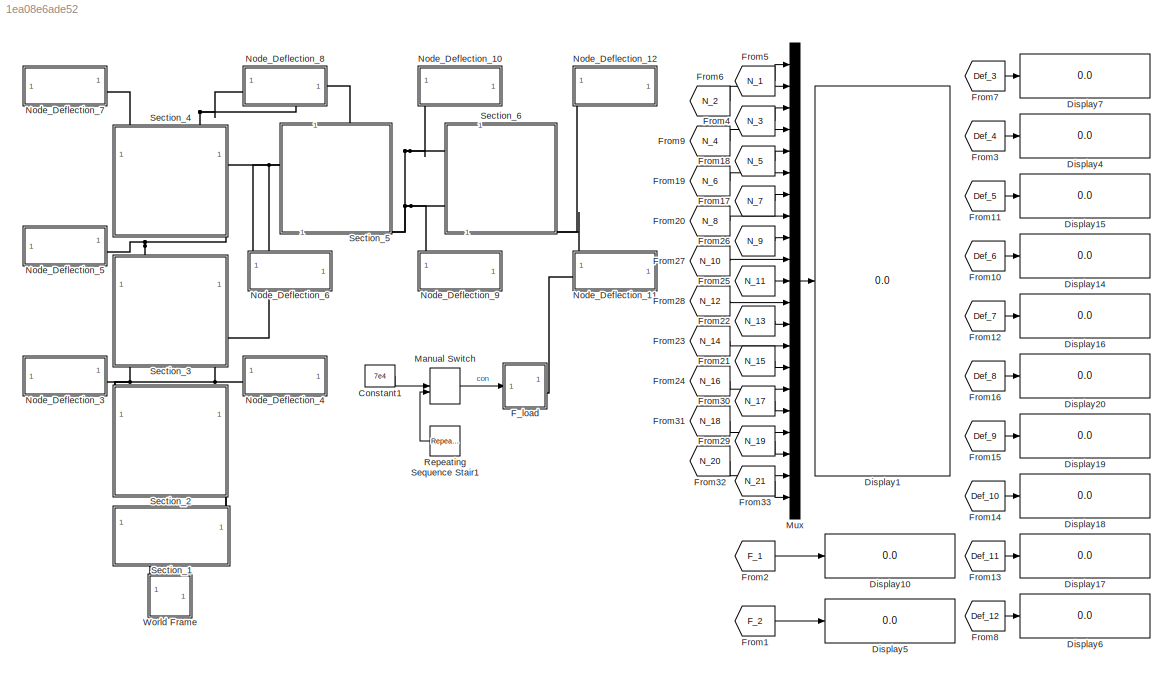
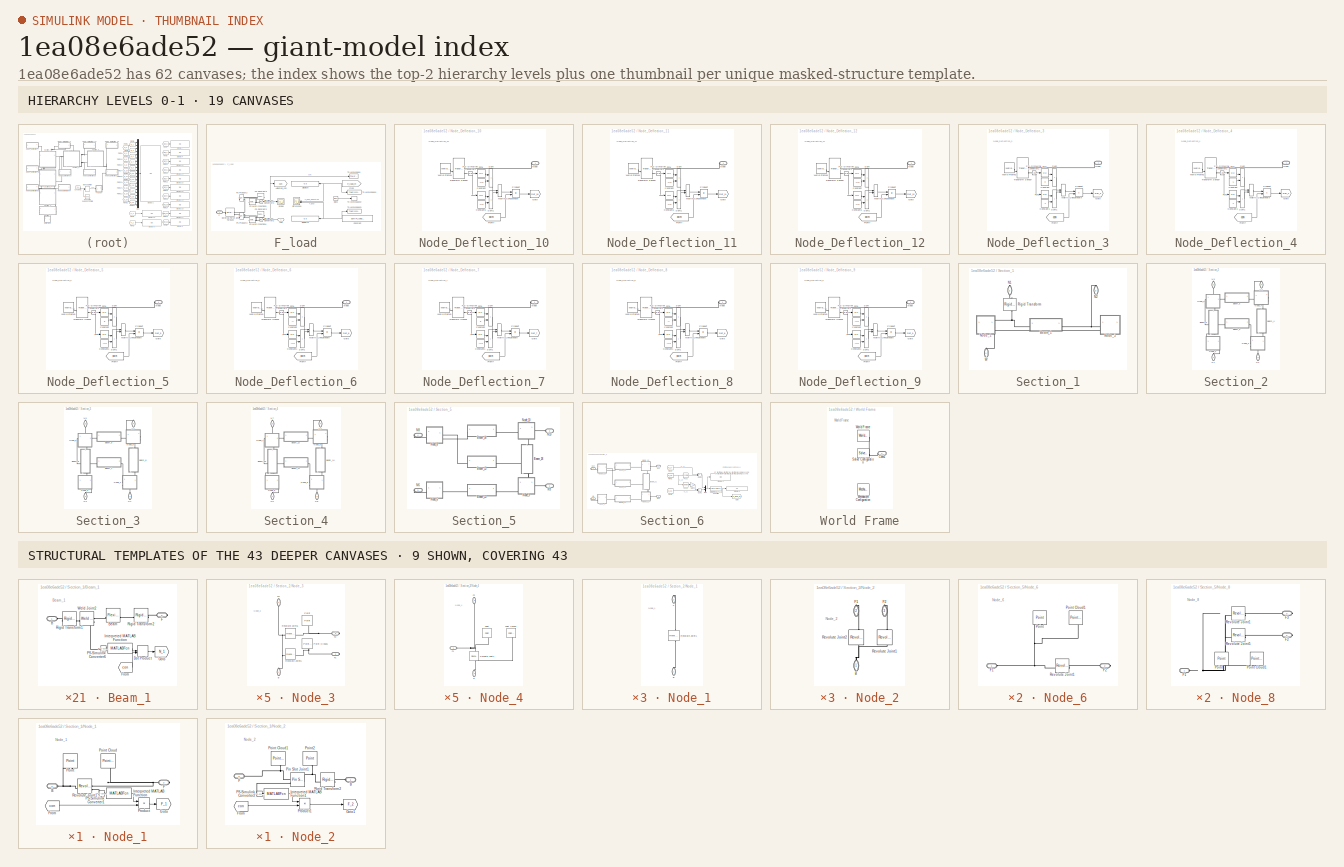
[diagram: thumbnail index - top-2 hierarchy levels (19 canvases) + 9 structural-template representatives of the remaining 43 canvases]
MODEL slx_1ea08e6ade52
KIND model
CONFIG AbsTol = 1e-3
CONFIG EnableMultiTasking = on
CONFIG FixedStep = 0.0001
CONFIG MaxStep = 0.01
CONFIG MinStep = auto
CONFIG RelTol = 1e-3
CONFIG SampleTimeConstraint = Unconstrained
CONFIG SolverName = ode15s
CONFIG StartTime = 0.0
CONFIG StopTime = 100
WORKSPACE source: MATLAB code (in-file)
WORKSPACE F_load_x = 0
WORKSPACE F_load_y = -1e4  (= -10000)
WORKSPACE d = 0.01
WORKSPACE l = 1
WORKSPACE L = l  (= 1)
WORKSPACE H = l  (= 1)
WORKSPACE Density = 7800
WORKSPACE E = 210
WORKSPACE G = 79
WORKSPACE bm = 0.01
WORKSPACE bk = 0.01
WORKSPACE b_rj = 1
WORKSPACE Size_frame = 30
BLOCK [Constant] Constant1
  Value = 7e4
BLOCK [Display] Display1
  AttributesFormatString = %<Description>
  Decimation = 1
  Description = N
  Format = long_e
  NameLocation = top
BLOCK [Display] Display10
  AttributesFormatString = %<Description>
  Decimation = 1
  Description = N
  Format = long_e
  NameLocation = top
BLOCK [Display] Display14
  AttributesFormatString = %<Description>
  Decimation = 1
  Description = m
  Format = long_e
  NameLocation = top
BLOCK [Display] Display15
  AttributesFormatString = %<Description>
  Decimation = 1
  Description = m
  Format = long_e
  NameLocation = top
BLOCK [Display] Display16
  AttributesFormatString = %<Description>
  Decimation = 1
  Description = m
  Format = long_e
  NameLocation = top
BLOCK [Display] Display17
  AttributesFormatString = %<Description>
  Decimation = 1
  Description = m
  Format = long_e
  NameLocation = top
BLOCK [Display] Display18
  AttributesFormatString = %<Description>
  Decimation = 1
  Description = m
  Format = long_e
  NameLocation = top
BLOCK [Display] Display19
  AttributesFormatString = %<Description>
  Decimation = 1
  Description = m
  Format = long_e
  NameLocation = top
BLOCK [Display] Display20
  AttributesFormatString = %<Description>
  Decimation = 1
  Description = m
  Format = long_e
  NameLocation = top
BLOCK [Display] Display4
  AttributesFormatString = %<Description>
  Decimation = 1
  Description = m
  Format = long_e
  NameLocation = top
BLOCK [Display] Display5
  AttributesFormatString = %<Description>
  Decimation = 1
  Description = N
  Format = long_e
  NameLocation = top
BLOCK [Display] Display6
  AttributesFormatString = %<Description>
  Decimation = 1
  Description = m
  Format = long_e
  NameLocation = top
BLOCK [Display] Display7
  AttributesFormatString = %<Description>
  Decimation = 1
  Description = m
  Format = long_e
  NameLocation = top
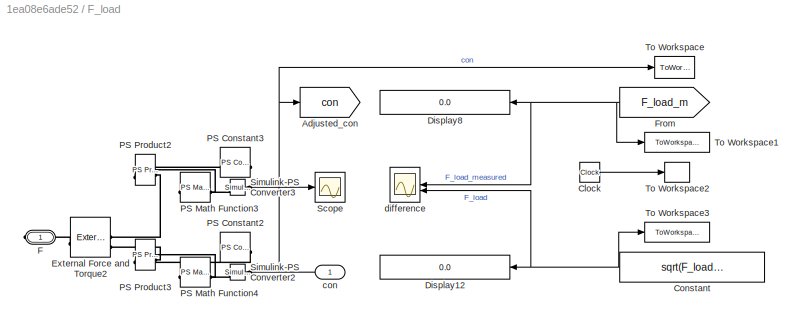
BLOCK [SubSystem] F_load
  AttributesFormatString = %<Fx> =  0 N\n%<Fy> = -10000 N
BLOCK [Goto] F_load/Adjusted_con
  GotoTag = con
  TagVisibility = global
BLOCK [Clock] F_load/Clock
  Decimation = 1
BLOCK [Constant] F_load/Constant
  NameLocation = top
  Value = sqrt(F_load_x^2 + F_load_y^2)
BLOCK [Display] F_load/Display12
  AttributesFormatString = %<Description>
  Decimation = 1
  Description = N
  Format = long_e
  NameLocation = top
BLOCK [Display] F_load/Display8
  AttributesFormatString = %<Description>
  Decimation = 1
  Description = N
  Format = long_e
  NameLocation = top
BLOCK [Reference] F_load/External Force and Torque2  REF=sm_lib/Forces and
Torques/External Force
and Torque
  NameLocation = top
  SourceBlock = sm_lib/Forces and\nTorques/External Force\nand Torque
  SourceType = External Force\nand Torque
BLOCK [PMIOPort] F_load/F
  Side = Right
BLOCK [From] F_load/From
  GotoTag = F_load_m
  NameLocation = top
  TagVisibility = global
BLOCK [Reference] F_load/PS Constant2  REF=fl_lib/Physical Signals/Sources/PS Constant
  AttributesFormatString = %<constant>
  NameLocation = top
  SourceBlock = fl_lib/Physical Signals/Sources/PS Constant
  SourceType = PS Constant
BLOCK [Reference] F_load/PS Constant3  REF=fl_lib/Physical Signals/Sources/PS Constant
  AttributesFormatString = %<constant>
  NameLocation = top
  SourceBlock = fl_lib/Physical Signals/Sources/PS Constant
  SourceType = PS Constant
BLOCK [Reference] F_load/PS Math Function3  REF=fl_lib/Physical Signals/Functions/PS Math Function
  NameLocation = top
  SourceBlock = fl_lib/Physical Signals/Functions/PS Math Function
  SourceType = PS Math Function
BLOCK [Reference] F_load/PS Math Function4  REF=fl_lib/Physical Signals/Functions/PS Math Function
  NameLocation = top
  SourceBlock = fl_lib/Physical Signals/Functions/PS Math Function
  SourceType = PS Math Function
BLOCK [Reference] F_load/PS Product2  REF=fl_lib/Physical Signals/Functions/PS Product
  NameLocation = top
  SourceBlock = fl_lib/Physical Signals/Functions/PS Product
  SourceType = PS Product
BLOCK [Reference] F_load/PS Product3  REF=fl_lib/Physical Signals/Functions/PS Product
  NameLocation = top
  SourceBlock = fl_lib/Physical Signals/Functions/PS Product
  SourceType = PS Product
BLOCK [Scope] F_load/Scope
  Floating = off
  NumInputPorts = 1
  ScopeSpecificationString = Simulink.scopes.TimeScopeBlockCfg('CurrentConfiguration', extmgr.ConfigurationSet(extmgr.Configuration('Core','General UI',true),extmgr.Configuration('Core','Source UI',true),extmgr.Configuration('Sources','WiredSimulink',true,'DataLoggingVariableName','ScopeData1'),extmgr.Configuration('Visuals','Time Domain',true,'SerializedDisplays',{struct('MinYLimReal','-1249662.5','MaxYLimReal','11249962.5',...<+1719ch>
BLOCK [Reference] F_load/Simulink-PS Converter2  REF=nesl_utility/Simulink-PS
Converter
  NameLocation = top
  SourceBlock = nesl_utility/Simulink-PS\nConverter
  SourceType = Simulink-PS\nConverter
BLOCK [Reference] F_load/Simulink-PS Converter3  REF=nesl_utility/Simulink-PS
Converter
  NameLocation = top
  SourceBlock = nesl_utility/Simulink-PS\nConverter
  SourceType = Simulink-PS\nConverter
BLOCK [ToWorkspace] F_load/To Workspace
  FixptAsFi = on
  MaxDataPoints = inf
  SampleTime = -1
  VariableName = con_out
BLOCK [ToWorkspace] F_load/To Workspace1
  Decimation = 3
  FixptAsFi = on
  MaxDataPoints = inf
  SampleTime = -1
  VariableName = F_load_m_out
BLOCK [ToWorkspace] F_load/To Workspace2
  Decimation = 3
  FixptAsFi = on
  MaxDataPoints = inf
  SampleTime = -1
  VariableName = t_out
BLOCK [ToWorkspace] F_load/To Workspace3
  Decimation = 3
  FixptAsFi = on
  MaxDataPoints = inf
  SampleTime = -1
  VariableName = F_load_out
BLOCK [Inport] F_load/con
BLOCK [Scope] F_load/difference
  Floating = off
  NumInputPorts = 2
  ScopeSpecificationString = Simulink.scopes.TimeScopeBlockCfg('CurrentConfiguration', extmgr.ConfigurationSet(extmgr.Configuration('Core','General UI',true),extmgr.Configuration('Core','Source UI',true),extmgr.Configuration('Sources','WiredSimulink',true),extmgr.Configuration('Visuals','Time Domain',true,'SerializedDisplays',{struct('MinYLimReal','9999.99649','MaxYLimReal','10000.00636','YLabelReal','','MinYLimMag','9999.996...<+2115ch>
BLOCK [From] From1
  GotoTag = F_2
  TagVisibility = global
BLOCK [From] From10
  GotoTag = Def_6
  TagVisibility = global
BLOCK [From] From11
  GotoTag = Def_5
  TagVisibility = global
BLOCK [From] From12
  GotoTag = Def_7
  TagVisibility = global
BLOCK [From] From13
  GotoTag = Def_11
  TagVisibility = global
BLOCK [From] From14
  GotoTag = Def_10
  TagVisibility = global
BLOCK [From] From15
  GotoTag = Def_9
  TagVisibility = global
BLOCK [From] From16
  GotoTag = Def_8
  TagVisibility = global
BLOCK [From] From17
  GotoTag = N_7
  TagVisibility = global
BLOCK [From] From18
  GotoTag = N_5
  TagVisibility = global
BLOCK [From] From19
  GotoTag = N_6
  TagVisibility = global
BLOCK [From] From2
  GotoTag = F_1
  TagVisibility = global
BLOCK [From] From20
  GotoTag = N_8
  TagVisibility = global
BLOCK [From] From21
  GotoTag = N_15
  TagVisibility = global
BLOCK [From] From22
  GotoTag = N_13
  TagVisibility = global
BLOCK [From] From23
  GotoTag = N_14
  TagVisibility = global
BLOCK [From] From24
  GotoTag = N_16
  TagVisibility = global
BLOCK [From] From25
  GotoTag = N_11
  TagVisibility = global
BLOCK [From] From26
  GotoTag = N_9
  TagVisibility = global
BLOCK [From] From27
  GotoTag = N_10
  TagVisibility = global
BLOCK [From] From28
  GotoTag = N_12
  TagVisibility = global
BLOCK [From] From29
  GotoTag = N_19
  TagVisibility = global
BLOCK [From] From3
  GotoTag = Def_4
  TagVisibility = global
BLOCK [From] From30
  GotoTag = N_17
  TagVisibility = global
BLOCK [From] From31
  GotoTag = N_18
  TagVisibility = global
BLOCK [From] From32
  GotoTag = N_20
  TagVisibility = global
BLOCK [From] From33
  GotoTag = N_21
  TagVisibility = global
BLOCK [From] From4
  GotoTag = N_3
  TagVisibility = global
BLOCK [From] From5
  GotoTag = N_1
  TagVisibility = global
BLOCK [From] From6
  GotoTag = N_2
  TagVisibility = global
BLOCK [From] From7
  GotoTag = Def_3
  TagVisibility = global
BLOCK [From] From8
  GotoTag = Def_12
  TagVisibility = global
BLOCK [From] From9
  GotoTag = N_4
  TagVisibility = global
BLOCK [ManualSwitch] Manual Switch
  CurrentSetting = 0
BLOCK [Mux] Mux
  DisplayOption = bar
  Inputs = 21
BLOCK [SubSystem] Node_Deflection_10
  NameLocation = top
BLOCK [Constant] Node_Deflection_10/Constant
  Value = -L*2
BLOCK [Constant] Node_Deflection_10/Constant1
  Value = -L*3
BLOCK [Fcn] Node_Deflection_10/Fcn1
  Expr = u(1)
BLOCK [Fcn] Node_Deflection_10/Fcn2
  Expr = u(2)
BLOCK [From] Node_Deflection_10/From7
  GotoTag = con
  TagVisibility = global
BLOCK [Goto] Node_Deflection_10/Goto
  GotoTag = Def_10
  TagVisibility = global
BLOCK [Concatenate] Node_Deflection_10/Matrix Concatenate
  AttributesFormatString = %<Description>
  ConcatenateDimension = 2
BLOCK [PMIOPort] Node_Deflection_10/Node
  Side = Left
BLOCK [Reference] Node_Deflection_10/PS-Simulink Converter1  REF=nesl_utility/PS-Simulink
Converter
  SourceBlock = nesl_utility/PS-Simulink\nConverter
  SourceType = PS-Simulink\nConverter
BLOCK [Product] Node_Deflection_10/Product
BLOCK [Sum] Node_Deflection_10/Sum
  IconShape = rectangular
  Inputs = 2
BLOCK [Sum] Node_Deflection_10/Sum1
  IconShape = rectangular
  Inputs = 2
BLOCK [Reference] Node_Deflection_10/Transform Sensor  REF=sm_lib/Frames and
Transforms/Transform
Sensor
  AttributesFormatString = %<Description>
  Description = Translation\n[x, y, z]
  SourceBlock = sm_lib/Frames and\nTransforms/Transform\nSensor
  SourceType = Transform\nSensor
BLOCK [Reference] Node_Deflection_10/World Frame1  REF=sm_lib/Frames and
Transforms/World Frame
  SourceBlock = sm_lib/Frames and\nTransforms/World Frame
  SourceType = World Frame
BLOCK [SubSystem] Node_Deflection_11
  NameLocation = top
BLOCK [Constant] Node_Deflection_11/Constant
  Value = -L*3
BLOCK [Constant] Node_Deflection_11/Constant1
  Value = -L*2
BLOCK [Fcn] Node_Deflection_11/Fcn1
  Expr = u(1)
BLOCK [Fcn] Node_Deflection_11/Fcn2
  Expr = u(2)
BLOCK [From] Node_Deflection_11/From7
  GotoTag = con
  TagVisibility = global
BLOCK [Goto] Node_Deflection_11/Goto
  GotoTag = Def_11
  TagVisibility = global
BLOCK [Concatenate] Node_Deflection_11/Matrix Concatenate
  AttributesFormatString = %<Description>
  ConcatenateDimension = 2
BLOCK [PMIOPort] Node_Deflection_11/Node
  Side = Left
BLOCK [Reference] Node_Deflection_11/PS-Simulink Converter1  REF=nesl_utility/PS-Simulink
Converter
  SourceBlock = nesl_utility/PS-Simulink\nConverter
  SourceType = PS-Simulink\nConverter
BLOCK [Product] Node_Deflection_11/Product
BLOCK [Sum] Node_Deflection_11/Sum
  IconShape = rectangular
  Inputs = 2
BLOCK [Sum] Node_Deflection_11/Sum1
  IconShape = rectangular
  Inputs = 2
BLOCK [Reference] Node_Deflection_11/Transform Sensor  REF=sm_lib/Frames and
Transforms/Transform
Sensor
  AttributesFormatString = %<Description>
  Description = Translation\n[x, y, z]
  SourceBlock = sm_lib/Frames and\nTransforms/Transform\nSensor
  SourceType = Transform\nSensor
BLOCK [Reference] Node_Deflection_11/World Frame1  REF=sm_lib/Frames and
Transforms/World Frame
  SourceBlock = sm_lib/Frames and\nTransforms/World Frame
  SourceType = World Frame
BLOCK [SubSystem] Node_Deflection_12
  NameLocation = top
BLOCK [Constant] Node_Deflection_12/Constant
  Value = -L*3
BLOCK [Constant] Node_Deflection_12/Constant1
  Value = -L*3
BLOCK [Fcn] Node_Deflection_12/Fcn1
  Expr = u(1)
BLOCK [Fcn] Node_Deflection_12/Fcn2
  Expr = u(2)
BLOCK [From] Node_Deflection_12/From7
  GotoTag = con
  TagVisibility = global
BLOCK [Goto] Node_Deflection_12/Goto
  GotoTag = Def_12
  TagVisibility = global
BLOCK [Concatenate] Node_Deflection_12/Matrix Concatenate
  AttributesFormatString = %<Description>
  ConcatenateDimension = 2
BLOCK [PMIOPort] Node_Deflection_12/Node
  Side = Left
BLOCK [Reference] Node_Deflection_12/PS-Simulink Converter1  REF=nesl_utility/PS-Simulink
Converter
  SourceBlock = nesl_utility/PS-Simulink\nConverter
  SourceType = PS-Simulink\nConverter
BLOCK [Product] Node_Deflection_12/Product
BLOCK [Sum] Node_Deflection_12/Sum
  IconShape = rectangular
  Inputs = 2
BLOCK [Sum] Node_Deflection_12/Sum1
  IconShape = rectangular
  Inputs = 2
BLOCK [Reference] Node_Deflection_12/Transform Sensor  REF=sm_lib/Frames and
Transforms/Transform
Sensor
  AttributesFormatString = %<Description>
  Description = Translation\n[x, y, z]
  SourceBlock = sm_lib/Frames and\nTransforms/Transform\nSensor
  SourceType = Transform\nSensor
BLOCK [Reference] Node_Deflection_12/World Frame1  REF=sm_lib/Frames and
Transforms/World Frame
  SourceBlock = sm_lib/Frames and\nTransforms/World Frame
  SourceType = World Frame
BLOCK [SubSystem] Node_Deflection_3
  NameLocation = top
BLOCK [Constant] Node_Deflection_3/Constant
  Value = 0
BLOCK [Constant] Node_Deflection_3/Constant1
  Value = -L
BLOCK [Fcn] Node_Deflection_3/Fcn1
  Expr = u(1)
BLOCK [Fcn] Node_Deflection_3/Fcn2
  Expr = u(2)
BLOCK [From] Node_Deflection_3/From7
  GotoTag = con
  TagVisibility = global
BLOCK [Goto] Node_Deflection_3/Goto
  GotoTag = Def_3
  TagVisibility = global
BLOCK [Concatenate] Node_Deflection_3/Matrix Concatenate
  AttributesFormatString = %<Description>
  ConcatenateDimension = 2
BLOCK [PMIOPort] Node_Deflection_3/Node
  Side = Left
BLOCK [Reference] Node_Deflection_3/PS-Simulink Converter1  REF=nesl_utility/PS-Simulink
Converter
  SourceBlock = nesl_utility/PS-Simulink\nConverter
  SourceType = PS-Simulink\nConverter
BLOCK [Product] Node_Deflection_3/Product
BLOCK [Sum] Node_Deflection_3/Sum
  IconShape = rectangular
  Inputs = 2
BLOCK [Sum] Node_Deflection_3/Sum1
  IconShape = rectangular
  Inputs = 2
BLOCK [Reference] Node_Deflection_3/Transform Sensor  REF=sm_lib/Frames and
Transforms/Transform
Sensor
  AttributesFormatString = %<Description>
  Description = Translation\n[x, y, z]
  SourceBlock = sm_lib/Frames and\nTransforms/Transform\nSensor
  SourceType = Transform\nSensor
BLOCK [Reference] Node_Deflection_3/World Frame1  REF=sm_lib/Frames and
Transforms/World Frame
  SourceBlock = sm_lib/Frames and\nTransforms/World Frame
  SourceType = World Frame
BLOCK [SubSystem] Node_Deflection_4
  NameLocation = top
BLOCK [Constant] Node_Deflection_4/Constant
  Value = -L
BLOCK [Constant] Node_Deflection_4/Constant1
  Value = -L
BLOCK [Fcn] Node_Deflection_4/Fcn1
  Expr = u(1)
BLOCK [Fcn] Node_Deflection_4/Fcn2
  Expr = u(2)
BLOCK [From] Node_Deflection_4/From7
  GotoTag = con
  TagVisibility = global
BLOCK [Goto] Node_Deflection_4/Goto
  GotoTag = Def_4
  TagVisibility = global
BLOCK [Concatenate] Node_Deflection_4/Matrix Concatenate
  AttributesFormatString = %<Description>
  ConcatenateDimension = 2
BLOCK [PMIOPort] Node_Deflection_4/Node
  Side = Left
BLOCK [Reference] Node_Deflection_4/PS-Simulink Converter1  REF=nesl_utility/PS-Simulink
Converter
  SourceBlock = nesl_utility/PS-Simulink\nConverter
  SourceType = PS-Simulink\nConverter
BLOCK [Product] Node_Deflection_4/Product
BLOCK [Sum] Node_Deflection_4/Sum
  IconShape = rectangular
  Inputs = 2
BLOCK [Sum] Node_Deflection_4/Sum1
  IconShape = rectangular
  Inputs = 2
BLOCK [Reference] Node_Deflection_4/Transform Sensor  REF=sm_lib/Frames and
Transforms/Transform
Sensor
  AttributesFormatString = %<Description>
  Description = Translation\n[x, y, z]
  SourceBlock = sm_lib/Frames and\nTransforms/Transform\nSensor
  SourceType = Transform\nSensor
BLOCK [Reference] Node_Deflection_4/World Frame1  REF=sm_lib/Frames and
Transforms/World Frame
  SourceBlock = sm_lib/Frames and\nTransforms/World Frame
  SourceType = World Frame
BLOCK [SubSystem] Node_Deflection_5
  NameLocation = top
BLOCK [Constant] Node_Deflection_5/Constant
  Value = 0
BLOCK [Constant] Node_Deflection_5/Constant1
  Value = -L*2
BLOCK [Fcn] Node_Deflection_5/Fcn1
  Expr = u(1)
BLOCK [Fcn] Node_Deflection_5/Fcn2
  Expr = u(2)
BLOCK [From] Node_Deflection_5/From7
  GotoTag = con
  TagVisibility = global
BLOCK [Goto] Node_Deflection_5/Goto
  GotoTag = Def_5
  TagVisibility = global
BLOCK [Concatenate] Node_Deflection_5/Matrix Concatenate
  AttributesFormatString = %<Description>
  ConcatenateDimension = 2
BLOCK [PMIOPort] Node_Deflection_5/Node
  Side = Left
BLOCK [Reference] Node_Deflection_5/PS-Simulink Converter1  REF=nesl_utility/PS-Simulink
Converter
  SourceBlock = nesl_utility/PS-Simulink\nConverter
  SourceType = PS-Simulink\nConverter
BLOCK [Product] Node_Deflection_5/Product
BLOCK [Sum] Node_Deflection_5/Sum
  IconShape = rectangular
  Inputs = 2
BLOCK [Sum] Node_Deflection_5/Sum1
  IconShape = rectangular
  Inputs = 2
BLOCK [Reference] Node_Deflection_5/Transform Sensor  REF=sm_lib/Frames and
Transforms/Transform
Sensor
  AttributesFormatString = %<Description>
  Description = Translation\n[x, y, z]
  SourceBlock = sm_lib/Frames and\nTransforms/Transform\nSensor
  SourceType = Transform\nSensor
BLOCK [Reference] Node_Deflection_5/World Frame1  REF=sm_lib/Frames and
Transforms/World Frame
  SourceBlock = sm_lib/Frames and\nTransforms/World Frame
  SourceType = World Frame
BLOCK [SubSystem] Node_Deflection_6
  NameLocation = top
BLOCK [Constant] Node_Deflection_6/Constant
  Value = -L
BLOCK [Constant] Node_Deflection_6/Constant1
  Value = -L*2
BLOCK [Fcn] Node_Deflection_6/Fcn1
  Expr = u(1)
BLOCK [Fcn] Node_Deflection_6/Fcn2
  Expr = u(2)
BLOCK [From] Node_Deflection_6/From7
  GotoTag = con
  TagVisibility = global
BLOCK [Goto] Node_Deflection_6/Goto
  GotoTag = Def_6
  TagVisibility = global
BLOCK [Concatenate] Node_Deflection_6/Matrix Concatenate
  AttributesFormatString = %<Description>
  ConcatenateDimension = 2
BLOCK [PMIOPort] Node_Deflection_6/Node
  Side = Left
BLOCK [Reference] Node_Deflection_6/PS-Simulink Converter1  REF=nesl_utility/PS-Simulink
Converter
  SourceBlock = nesl_utility/PS-Simulink\nConverter
  SourceType = PS-Simulink\nConverter
BLOCK [Product] Node_Deflection_6/Product
BLOCK [Sum] Node_Deflection_6/Sum
  IconShape = rectangular
  Inputs = 2
BLOCK [Sum] Node_Deflection_6/Sum1
  IconShape = rectangular
  Inputs = 2
BLOCK [Reference] Node_Deflection_6/Transform Sensor  REF=sm_lib/Frames and
Transforms/Transform
Sensor
  AttributesFormatString = %<Description>
  Description = Translation\n[x, y, z]
  SourceBlock = sm_lib/Frames and\nTransforms/Transform\nSensor
  SourceType = Transform\nSensor
BLOCK [Reference] Node_Deflection_6/World Frame1  REF=sm_lib/Frames and
Transforms/World Frame
  SourceBlock = sm_lib/Frames and\nTransforms/World Frame
  SourceType = World Frame
BLOCK [SubSystem] Node_Deflection_7
  NameLocation = top
BLOCK [Constant] Node_Deflection_7/Constant
  Value = 0
BLOCK [Constant] Node_Deflection_7/Constant1
  Value = -L*3
BLOCK [Fcn] Node_Deflection_7/Fcn1
  Expr = u(1)
BLOCK [Fcn] Node_Deflection_7/Fcn2
  Expr = u(2)
BLOCK [From] Node_Deflection_7/From7
  GotoTag = con
  TagVisibility = global
BLOCK [Goto] Node_Deflection_7/Goto
  GotoTag = Def_7
  TagVisibility = global
BLOCK [Concatenate] Node_Deflection_7/Matrix Concatenate
  AttributesFormatString = %<Description>
  ConcatenateDimension = 2
BLOCK [PMIOPort] Node_Deflection_7/Node
  Side = Left
BLOCK [Reference] Node_Deflection_7/PS-Simulink Converter1  REF=nesl_utility/PS-Simulink
Converter
  SourceBlock = nesl_utility/PS-Simulink\nConverter
  SourceType = PS-Simulink\nConverter
BLOCK [Product] Node_Deflection_7/Product
BLOCK [Sum] Node_Deflection_7/Sum
  IconShape = rectangular
  Inputs = 2
BLOCK [Sum] Node_Deflection_7/Sum1
  IconShape = rectangular
  Inputs = 2
BLOCK [Reference] Node_Deflection_7/Transform Sensor  REF=sm_lib/Frames and
Transforms/Transform
Sensor
  AttributesFormatString = %<Description>
  Description = Translation\n[x, y, z]
  SourceBlock = sm_lib/Frames and\nTransforms/Transform\nSensor
  SourceType = Transform\nSensor
BLOCK [Reference] Node_Deflection_7/World Frame1  REF=sm_lib/Frames and
Transforms/World Frame
  SourceBlock = sm_lib/Frames and\nTransforms/World Frame
  SourceType = World Frame
BLOCK [SubSystem] Node_Deflection_8
  NameLocation = top
BLOCK [Constant] Node_Deflection_8/Constant
  Value = -L
BLOCK [Constant] Node_Deflection_8/Constant1
  Value = -L*3
BLOCK [Fcn] Node_Deflection_8/Fcn1
  Expr = u(1)
BLOCK [Fcn] Node_Deflection_8/Fcn2
  Expr = u(2)
BLOCK [From] Node_Deflection_8/From7
  GotoTag = con
  TagVisibility = global
BLOCK [Goto] Node_Deflection_8/Goto
  GotoTag = Def_8
  TagVisibility = global
BLOCK [Concatenate] Node_Deflection_8/Matrix Concatenate
  AttributesFormatString = %<Description>
  ConcatenateDimension = 2
BLOCK [PMIOPort] Node_Deflection_8/Node
  Side = Left
BLOCK [Reference] Node_Deflection_8/PS-Simulink Converter1  REF=nesl_utility/PS-Simulink
Converter
  SourceBlock = nesl_utility/PS-Simulink\nConverter
  SourceType = PS-Simulink\nConverter
BLOCK [Product] Node_Deflection_8/Product
BLOCK [Sum] Node_Deflection_8/Sum
  IconShape = rectangular
  Inputs = 2
BLOCK [Sum] Node_Deflection_8/Sum1
  IconShape = rectangular
  Inputs = 2
BLOCK [Reference] Node_Deflection_8/Transform Sensor  REF=sm_lib/Frames and
Transforms/Transform
Sensor
  AttributesFormatString = %<Description>
  Description = Translation\n[x, y, z]
  SourceBlock = sm_lib/Frames and\nTransforms/Transform\nSensor
  SourceType = Transform\nSensor
BLOCK [Reference] Node_Deflection_8/World Frame1  REF=sm_lib/Frames and
Transforms/World Frame
  SourceBlock = sm_lib/Frames and\nTransforms/World Frame
  SourceType = World Frame
BLOCK [SubSystem] Node_Deflection_9
  NameLocation = top
BLOCK [Constant] Node_Deflection_9/Constant
  Value = -L*2
BLOCK [Constant] Node_Deflection_9/Constant1
  Value = -L*2
BLOCK [Fcn] Node_Deflection_9/Fcn1
  Expr = u(1)
BLOCK [Fcn] Node_Deflection_9/Fcn2
  Expr = u(2)
BLOCK [From] Node_Deflection_9/From7
  GotoTag = con
  TagVisibility = global
BLOCK [Goto] Node_Deflection_9/Goto
  GotoTag = Def_9
  TagVisibility = global
BLOCK [Concatenate] Node_Deflection_9/Matrix Concatenate
  AttributesFormatString = %<Description>
  ConcatenateDimension = 2
BLOCK [PMIOPort] Node_Deflection_9/Node
  Side = Left
BLOCK [Reference] Node_Deflection_9/PS-Simulink Converter1  REF=nesl_utility/PS-Simulink
Converter
  SourceBlock = nesl_utility/PS-Simulink\nConverter
  SourceType = PS-Simulink\nConverter
BLOCK [Product] Node_Deflection_9/Product
BLOCK [Sum] Node_Deflection_9/Sum
  IconShape = rectangular
  Inputs = 2
BLOCK [Sum] Node_Deflection_9/Sum1
  IconShape = rectangular
  Inputs = 2
BLOCK [Reference] Node_Deflection_9/Transform Sensor  REF=sm_lib/Frames and
Transforms/Transform
Sensor
  AttributesFormatString = %<Description>
  Description = Translation\n[x, y, z]
  SourceBlock = sm_lib/Frames and\nTransforms/Transform\nSensor
  SourceType = Transform\nSensor
BLOCK [Reference] Node_Deflection_9/World Frame1  REF=sm_lib/Frames and
Transforms/World Frame
  SourceBlock = sm_lib/Frames and\nTransforms/World Frame
  SourceType = World Frame
BLOCK [Reference] Repeating Sequence Stair1  REF=simulink/Sources/Repeating
Sequence
Stair
  AttributesFormatString = %<OutValues>\nSampleTime=%<tsamp> s
  SourceBlock = simulink/Sources/Repeating\nSequence\nStair
  SourceType = Repeating Sequence Stair
BLOCK [SubSystem] Section_1
  NameLocation = left
  PortSchema = {"entries":[{"content":{"sides":[{"content":{},"type":"ConnectorPlacement.EquallySpacedRectSide","uuid":"639cab07-c461-4b38-814c-b2f66736f8dc"},{"content":{"side":"RIGHT"},"type":"ConnectorPlacement.EquallySpacedRectSide","uuid":"511a9213-a72f-4349-881c-c7bf2be19ca2"},{"content":{"connectorIds":["LConn1"],"side":"TOP"},"type":"ConnectorPlacement.EquallySpacedRectSide","uuid":"5e8f2857-f7f3-429a-84...<+363ch>
BLOCK [SubSystem] Section_1/Beam_1
BLOCK [PMIOPort] Section_1/Beam_1/B
  Side = Left
BLOCK [Reference] Section_1/Beam_1/Beam  REF=sm_lib/Body Elements/Flexible Bodies/Beams/Flexible Cylindrical Beam
  AttributesFormatString = %<Description>
  SourceBlock = sm_lib/Body Elements/Flexible Bodies/Beams/Flexible Cylindrical Beam
  SourceType = Flexible Cylindrical Beam
BLOCK [DotProduct] Section_1/Beam_1/Dot Product
  OutDataTypeStr = Inherit: Inherit via internal rule
BLOCK [PMIOPort] Section_1/Beam_1/F
  Port = 2
  Side = Right
BLOCK [From] Section_1/Beam_1/From
  GotoTag = con
  TagVisibility = global
BLOCK [Goto] Section_1/Beam_1/Goto
  GotoTag = N_1
  TagVisibility = global
BLOCK [MATLABFcn] Section_1/Beam_1/Interpreted MATLAB Function
  AttributesFormatString = %<Description>
  Description = u(3)
  MATLABFcn = u(3)
BLOCK [Reference] Section_1/Beam_1/PS-Simulink Converter6  REF=nesl_utility/PS-Simulink
Converter
  SourceBlock = nesl_utility/PS-Simulink\nConverter
  SourceType = PS-Simulink\nConverter
BLOCK [Reference] Section_1/Beam_1/Rigid Transform1  REF=sm_lib/Frames and
Transforms/Rigid
Transform
  AttributesFormatString = %<RotationStandardAxis>\n%<RotationAngle> deg
  SourceBlock = sm_lib/Frames and\nTransforms/Rigid\nTransform
  SourceType = Rigid\nTransform
BLOCK [Reference] Section_1/Beam_1/Rigid Transform2  REF=sm_lib/Frames and
Transforms/Rigid
Transform
  AttributesFormatString = %<RotationStandardAxis>\n%<RotationAngle> deg
  SourceBlock = sm_lib/Frames and\nTransforms/Rigid\nTransform
  SourceType = Rigid\nTransform
BLOCK [Reference] Section_1/Beam_1/Weld Joint2  REF=sm_lib/Joints/Weld Joint
  AttributesFormatString = %<Description>
  Description = Total force\nsensing
  SourceBlock = sm_lib/Joints/Weld Joint
  SourceType = Weld Joint
BLOCK [PMIOPort] Section_1/N1
  NameLocation = right
  Port = 2
  Side = Right
BLOCK [PMIOPort] Section_1/N2
  NameLocation = left
  Port = 3
  Side = Right
BLOCK [SubSystem] Section_1/Node_1
  NameLocation = left
  PortSchema = {"entries":[{"content":{"sides":[{"content":{},"type":"ConnectorPlacement.EquallySpacedRectSide","uuid":"aca6bf7c-dcc8-4964-93f9-4a1fe43793ee"},{"content":{"connectorIds":["RConn1"],"side":"RIGHT"},"type":"ConnectorPlacement.EquallySpacedRectSide","uuid":"dab82db3-710a-4609-884f-38beebf819d8"},{"content":{"connectorIds":["LConn1"],"side":"TOP"},"type":"ConnectorPlacement.EquallySpacedRectSide","uu...<+228ch>
BLOCK [PMIOPort] Section_1/Node_1/B
  Side = Left
BLOCK [PMIOPort] Section_1/Node_1/F
  Port = 2
  Side = Right
BLOCK [From] Section_1/Node_1/From
  GotoTag = con
  TagVisibility = global
BLOCK [Goto] Section_1/Node_1/Goto
  GotoTag = F_1
  TagVisibility = global
BLOCK [MATLABFcn] Section_1/Node_1/Interpreted MATLAB Function
  AttributesFormatString = %<Description>
  Description = u(1:2)
  MATLABFcn = u(1:2)
BLOCK [Reference] Section_1/Node_1/PS-Simulink Converter1  REF=nesl_utility/PS-Simulink
Converter
  SourceBlock = nesl_utility/PS-Simulink\nConverter
  SourceType = PS-Simulink\nConverter
BLOCK [Reference] Section_1/Node_1/Point  REF=sm_lib/Curves and Surfaces/Point
  AttributesFormatString = %<Description>
  Description = Frame\nvisualization
  NameLocation = right
  SourceBlock = sm_lib/Curves and Surfaces/Point
  SourceType = Point
BLOCK [Reference] Section_1/Node_1/Point Cloud  REF=sm_lib/Curves and Surfaces/Point Cloud
  AttributesFormatString = %<Description>
  Description = Graphic\nsphere
  NameLocation = right
  SourceBlock = sm_lib/Curves and Surfaces/Point Cloud
  SourceType = Point Cloud
BLOCK [Product] Section_1/Node_1/Product
BLOCK [Reference] Section_1/Node_1/Revolute Joint1  REF=sm_lib/Joints/Revolute Joint
  Description = Total force\nsensing
  SourceBlock = sm_lib/Joints/Revolute Joint
  SourceType = Revolute Joint
BLOCK [SubSystem] Section_1/Node_2
  NameLocation = right
  PortSchema = {"entries":[{"content":{"sides":[{"content":{},"type":"ConnectorPlacement.EquallySpacedRectSide","uuid":"e4796b0d-43bb-40a6-b678-1855539de64a"},{"content":{"connectorIds":["RConn1"],"side":"RIGHT"},"type":"ConnectorPlacement.EquallySpacedRectSide","uuid":"30db7710-eb1e-4112-bf9f-d5c657b92c9d"},{"content":{"connectorIds":["LConn1"],"side":"TOP"},"type":"ConnectorPlacement.EquallySpacedRectSide","uu...<+354ch>
BLOCK [PMIOPort] Section_1/Node_2/B
  Side = Left
BLOCK [PMIOPort] Section_1/Node_2/F
  Port = 2
  Side = Right
BLOCK [From] Section_1/Node_2/From
  GotoTag = con
  TagVisibility = global
BLOCK [Goto] Section_1/Node_2/Goto1
  GotoTag = F_2
  TagVisibility = global
BLOCK [MATLABFcn] Section_1/Node_2/Interpreted MATLAB Function1
  AttributesFormatString = %<Description>
  Description = u(1:2)
  MATLABFcn = u(1:2)
BLOCK [Reference] Section_1/Node_2/PS-Simulink Converter2  REF=nesl_utility/PS-Simulink
Converter
  SourceBlock = nesl_utility/PS-Simulink\nConverter
  SourceType = PS-Simulink\nConverter
BLOCK [Reference] Section_1/Node_2/Pin Slot Joint1  REF=sm_lib/Joints/Pin Slot Joint
  NameLocation = top
  SourceBlock = sm_lib/Joints/Pin Slot Joint
  SourceType = Pin Slot Joint
BLOCK [Reference] Section_1/Node_2/Point Cloud1  REF=sm_lib/Curves and Surfaces/Point Cloud
  AttributesFormatString = %<Description>
  Description = Graphic\nsphere
  NameLocation = right
  SourceBlock = sm_lib/Curves and Surfaces/Point Cloud
  SourceType = Point Cloud
BLOCK [Reference] Section_1/Node_2/Point2  REF=sm_lib/Curves and Surfaces/Point
  AttributesFormatString = %<Description>
  Description = Frame\nvisualization
  NameLocation = right
  SourceBlock = sm_lib/Curves and Surfaces/Point
  SourceType = Point
BLOCK [Product] Section_1/Node_2/Product1
BLOCK [Reference] Section_1/Node_2/Rigid Transform2  REF=sm_lib/Frames and
Transforms/Rigid
Transform
  AttributesFormatString = %<Description>\n%<TranslationCartesianOffset> %<TranslationCartesianOffsetUnits>
  Description = Offset
  SourceBlock = sm_lib/Frames and\nTransforms/Rigid\nTransform
  SourceType = Rigid\nTransform
BLOCK [Reference] Section_1/Rigid Transform  REF=sm_lib/Frames and
Transforms/Rigid
Transform
  AttributesFormatString = %<RotationAngle>
  NameLocation = right
  SourceBlock = sm_lib/Frames and\nTransforms/Rigid\nTransform
  SourceType = Rigid\nTransform
BLOCK [PMIOPort] Section_1/W
  NameLocation = right
  Side = Left
BLOCK [SubSystem] Section_2
  NameLocation = left
  PortSchema = {"entries":[{"content":{"sides":[{"content":{},"type":"ConnectorPlacement.EquallySpacedRectSide","uuid":"9852856a-cfaf-4274-b31b-57367341680d"},{"content":{"side":"RIGHT"},"type":"ConnectorPlacement.EquallySpacedRectSide","uuid":"3ac774e0-1e79-4574-83fc-c3ad9c08ab46"},{"content":{"connectorIds":["LConn1","LConn2"],"side":"TOP"},"type":"ConnectorPlacement.EquallySpacedRectSide","uuid":"0b881cdb-833...<+372ch>  <repeated x5 — deduplicated; at blocks: Section_2, Section_3, Section_4, Section_5, Section_6>
BLOCK [SubSystem] Section_2/Beam_2
  NameLocation = left
BLOCK [PMIOPort] Section_2/Beam_2/B
  Side = Left
BLOCK [DotProduct] Section_2/Beam_2/Dot Product
  OutDataTypeStr = Inherit: Inherit via internal rule
BLOCK [PMIOPort] Section_2/Beam_2/F
  Port = 2
  Side = Right
BLOCK [Reference] Section_2/Beam_2/Flexible Cylindrical Beam1  REF=sm_lib/Body Elements/Flexible Bodies/Beams/Flexible Cylindrical Beam
  AttributesFormatString = %<Description>
  SourceBlock = sm_lib/Body Elements/Flexible Bodies/Beams/Flexible Cylindrical Beam
  SourceType = Flexible Cylindrical Beam
BLOCK [From] Section_2/Beam_2/From7
  GotoTag = con
  TagVisibility = global
BLOCK [Goto] Section_2/Beam_2/Goto
  GotoTag = N_2
  TagVisibility = global
BLOCK [MATLABFcn] Section_2/Beam_2/Interpreted MATLAB Function
  AttributesFormatString = %<Description>
  Description = u(3)
  MATLABFcn = u(3)
BLOCK [Reference] Section_2/Beam_2/PS-Simulink Converter6  REF=nesl_utility/PS-Simulink
Converter
  SourceBlock = nesl_utility/PS-Simulink\nConverter
  SourceType = PS-Simulink\nConverter
BLOCK [Reference] Section_2/Beam_2/Rigid Transform1  REF=sm_lib/Frames and
Transforms/Rigid
Transform
  AttributesFormatString = %<RotationStandardAxis>\n%<RotationAngle> deg
  SourceBlock = sm_lib/Frames and\nTransforms/Rigid\nTransform
  SourceType = Rigid\nTransform
BLOCK [Reference] Section_2/Beam_2/Rigid Transform2  REF=sm_lib/Frames and
Transforms/Rigid
Transform
  AttributesFormatString = %<RotationStandardAxis>\n%<RotationAngle> deg
  SourceBlock = sm_lib/Frames and\nTransforms/Rigid\nTransform
  SourceType = Rigid\nTransform
BLOCK [Reference] Section_2/Beam_2/Weld Joint2  REF=sm_lib/Joints/Weld Joint
  AttributesFormatString = %<Description>
  Description = Total force\nsensing
  SourceBlock = sm_lib/Joints/Weld Joint
  SourceType = Weld Joint
BLOCK [SubSystem] Section_2/Beam_3
BLOCK [PMIOPort] Section_2/Beam_3/B
  Side = Left
BLOCK [DotProduct] Section_2/Beam_3/Dot Product
  OutDataTypeStr = Inherit: Inherit via internal rule
BLOCK [PMIOPort] Section_2/Beam_3/F
  Port = 2
  Side = Right
BLOCK [Reference] Section_2/Beam_3/Flexible Cylindrical Beam1  REF=sm_lib/Body Elements/Flexible Bodies/Beams/Flexible Cylindrical Beam
  AttributesFormatString = %<Description>
  SourceBlock = sm_lib/Body Elements/Flexible Bodies/Beams/Flexible Cylindrical Beam
  SourceType = Flexible Cylindrical Beam
BLOCK [From] Section_2/Beam_3/From7
  GotoTag = con
  TagVisibility = global
BLOCK [Goto] Section_2/Beam_3/Goto
  GotoTag = N_3
  TagVisibility = global
BLOCK [MATLABFcn] Section_2/Beam_3/Interpreted MATLAB Function
  AttributesFormatString = %<Description>
  Description = u(3)
  MATLABFcn = u(3)
BLOCK [Reference] Section_2/Beam_3/PS-Simulink Converter6  REF=nesl_utility/PS-Simulink
Converter
  SourceBlock = nesl_utility/PS-Simulink\nConverter
  SourceType = PS-Simulink\nConverter
BLOCK [Reference] Section_2/Beam_3/Rigid Transform1  REF=sm_lib/Frames and
Transforms/Rigid
Transform
  AttributesFormatString = %<RotationStandardAxis>\n%<RotationAngle> deg
  SourceBlock = sm_lib/Frames and\nTransforms/Rigid\nTransform
  SourceType = Rigid\nTransform
BLOCK [Reference] Section_2/Beam_3/Rigid Transform2  REF=sm_lib/Frames and
Transforms/Rigid
Transform
  AttributesFormatString = %<RotationStandardAxis>\n%<RotationAngle> deg
  SourceBlock = sm_lib/Frames and\nTransforms/Rigid\nTransform
  SourceType = Rigid\nTransform
BLOCK [Reference] Section_2/Beam_3/Weld Joint2  REF=sm_lib/Joints/Weld Joint
  AttributesFormatString = %<Description>
  Description = Total force\nsensing
  SourceBlock = sm_lib/Joints/Weld Joint
  SourceType = Weld Joint
BLOCK [SubSystem] Section_2/Beam_4
  NameLocation = right
BLOCK [PMIOPort] Section_2/Beam_4/B
  Side = Left
BLOCK [DotProduct] Section_2/Beam_4/Dot Product
  OutDataTypeStr = Inherit: Inherit via internal rule
BLOCK [PMIOPort] Section_2/Beam_4/F
  Port = 2
  Side = Right
BLOCK [Reference] Section_2/Beam_4/Flexible Cylindrical Beam1  REF=sm_lib/Body Elements/Flexible Bodies/Beams/Flexible Cylindrical Beam
  AttributesFormatString = %<Description>
  SourceBlock = sm_lib/Body Elements/Flexible Bodies/Beams/Flexible Cylindrical Beam
  SourceType = Flexible Cylindrical Beam
BLOCK [From] Section_2/Beam_4/From7
  GotoTag = con
  TagVisibility = global
BLOCK [Goto] Section_2/Beam_4/Goto
  GotoTag = N_4
  TagVisibility = global
BLOCK [MATLABFcn] Section_2/Beam_4/Interpreted MATLAB Function
  AttributesFormatString = %<Description>
  Description = u(3)
  MATLABFcn = u(3)
BLOCK [Reference] Section_2/Beam_4/PS-Simulink Converter6  REF=nesl_utility/PS-Simulink
Converter
  SourceBlock = nesl_utility/PS-Simulink\nConverter
  SourceType = PS-Simulink\nConverter
BLOCK [Reference] Section_2/Beam_4/Rigid Transform1  REF=sm_lib/Frames and
Transforms/Rigid
Transform
  AttributesFormatString = %<RotationStandardAxis>\n%<RotationAngle> deg
  SourceBlock = sm_lib/Frames and\nTransforms/Rigid\nTransform
  SourceType = Rigid\nTransform
BLOCK [Reference] Section_2/Beam_4/Rigid Transform2  REF=sm_lib/Frames and
Transforms/Rigid
Transform
  AttributesFormatString = %<RotationStandardAxis>\n%<RotationAngle> deg
  SourceBlock = sm_lib/Frames and\nTransforms/Rigid\nTransform
  SourceType = Rigid\nTransform
BLOCK [Reference] Section_2/Beam_4/Weld Joint2  REF=sm_lib/Joints/Weld Joint
  AttributesFormatString = %<Description>
  Description = Total force\nsensing
  SourceBlock = sm_lib/Joints/Weld Joint
  SourceType = Weld Joint
BLOCK [SubSystem] Section_2/Beam_5
BLOCK [PMIOPort] Section_2/Beam_5/B
  Side = Left
BLOCK [DotProduct] Section_2/Beam_5/Dot Product
  OutDataTypeStr = Inherit: Inherit via internal rule
BLOCK [PMIOPort] Section_2/Beam_5/F
  Port = 2
  Side = Right
BLOCK [Reference] Section_2/Beam_5/Flexible Cylindrical Beam1  REF=sm_lib/Body Elements/Flexible Bodies/Beams/Flexible Cylindrical Beam
  AttributesFormatString = %<Description>
  SourceBlock = sm_lib/Body Elements/Flexible Bodies/Beams/Flexible Cylindrical Beam
  SourceType = Flexible Cylindrical Beam
BLOCK [From] Section_2/Beam_5/From7
  GotoTag = con
  TagVisibility = global
BLOCK [Goto] Section_2/Beam_5/Goto
  GotoTag = N_5
  TagVisibility = global
BLOCK [MATLABFcn] Section_2/Beam_5/Interpreted MATLAB Function
  AttributesFormatString = %<Description>
  Description = u(3)
  MATLABFcn = u(3)
BLOCK [Reference] Section_2/Beam_5/PS-Simulink Converter6  REF=nesl_utility/PS-Simulink
Converter
  SourceBlock = nesl_utility/PS-Simulink\nConverter
  SourceType = PS-Simulink\nConverter
BLOCK [Reference] Section_2/Beam_5/Rigid Transform1  REF=sm_lib/Frames and
Transforms/Rigid
Transform
  AttributesFormatString = %<RotationStandardAxis>\n%<RotationAngle> deg
  SourceBlock = sm_lib/Frames and\nTransforms/Rigid\nTransform
  SourceType = Rigid\nTransform
BLOCK [Reference] Section_2/Beam_5/Rigid Transform2  REF=sm_lib/Frames and
Transforms/Rigid
Transform
  AttributesFormatString = %<RotationStandardAxis>\n%<RotationAngle> deg
  SourceBlock = sm_lib/Frames and\nTransforms/Rigid\nTransform
  SourceType = Rigid\nTransform
BLOCK [Reference] Section_2/Beam_5/Weld Joint2  REF=sm_lib/Joints/Weld Joint
  AttributesFormatString = %<Description>
  Description = Total force\nsensing
  SourceBlock = sm_lib/Joints/Weld Joint
  SourceType = Weld Joint
BLOCK [PMIOPort] Section_2/N1
  NameLocation = right
  Side = Left
BLOCK [PMIOPort] Section_2/N2
  NameLocation = right
  Port = 2
  Side = Left
BLOCK [PMIOPort] Section_2/N3
  NameLocation = right
  Port = 3
  Side = Right
BLOCK [PMIOPort] Section_2/N4
  NameLocation = right
  Port = 4
  Side = Right
BLOCK [SubSystem] Section_2/Node_1
  NameLocation = left
  PortSchema = {"entries":[{"content":{"sides":[{"content":{},"type":"ConnectorPlacement.EquallySpacedRectSide","uuid":"8515b1c5-3545-41e3-b118-13ff900d4b29"},{"content":{"side":"RIGHT"},"type":"ConnectorPlacement.EquallySpacedRectSide","uuid":"a9ef51d2-c79d-4a36-af02-f81a35fa3e5b"},{"content":{"connectorIds":["LConn1"],"side":"TOP"},"type":"ConnectorPlacement.EquallySpacedRectSide","uuid":"f027515f-1122-484c-94...<+354ch>  <repeated x3 — deduplicated; at blocks: Node_1, Node_3, Node_5>
BLOCK [PMIOPort] Section_2/Node_1/B
  NameLocation = right
  Side = Left
BLOCK [PMIOPort] Section_2/Node_1/F
  NameLocation = left
  Port = 2
  Side = Right
BLOCK [Reference] Section_2/Node_1/Revolute Joint1  REF=sm_lib/Joints/Revolute Joint
  NameLocation = right
  SourceBlock = sm_lib/Joints/Revolute Joint
  SourceType = Revolute Joint
BLOCK [SubSystem] Section_2/Node_2
  NameLocation = right
  PortSchema = {"entries":[{"content":{"sides":[{"content":{},"type":"ConnectorPlacement.EquallySpacedRectSide","uuid":"01fbe943-d1b3-448b-a169-5bcf29c0e4f2"},{"content":{"side":"RIGHT"},"type":"ConnectorPlacement.EquallySpacedRectSide","uuid":"10891364-c263-49ec-ba31-f6a87e2d8ee4"},{"content":{"connectorIds":["LConn1"],"side":"TOP"},"type":"ConnectorPlacement.EquallySpacedRectSide","uuid":"7927076a-ca63-430c-95...<+363ch>  <repeated x3 — deduplicated; at blocks: Node_2, Node_4, Node_6>
BLOCK [PMIOPort] Section_2/Node_2/B
  NameLocation = left
  Side = Left
BLOCK [PMIOPort] Section_2/Node_2/F1
  NameLocation = right
  Port = 2
  Side = Right
BLOCK [PMIOPort] Section_2/Node_2/F2
  NameLocation = right
  Port = 3
  Side = Right
BLOCK [Reference] Section_2/Node_2/Revolute Joint1  REF=sm_lib/Joints/Revolute Joint
  NameLocation = right
  SourceBlock = sm_lib/Joints/Revolute Joint
  SourceType = Revolute Joint
BLOCK [Reference] Section_2/Node_2/Revolute Joint2  REF=sm_lib/Joints/Revolute Joint
  NameLocation = right
  SourceBlock = sm_lib/Joints/Revolute Joint
  SourceType = Revolute Joint
BLOCK [SubSystem] Section_2/Node_3
  NameLocation = left
  PortSchema = {"entries":[{"content":{"sides":[{"content":{},"type":"ConnectorPlacement.EquallySpacedRectSide","uuid":"8515b1c5-3545-41e3-b118-13ff900d4b29"},{"content":{"connectorIds":["RConn1","RConn2"],"side":"RIGHT"},"type":"ConnectorPlacement.EquallySpacedRectSide","uuid":"a9ef51d2-c79d-4a36-af02-f81a35fa3e5b"},{"content":{"connectorIds":["LConn1"],"side":"TOP"},"type":"ConnectorPlacement.EquallySpacedRect...<+389ch>  <repeated x3 — deduplicated; at blocks: Node_3, Node_5, Node_7>
BLOCK [PMIOPort] Section_2/Node_3/B
  NameLocation = right
  Side = Left
BLOCK [PMIOPort] Section_2/Node_3/F1
  Port = 2
  Side = Right
BLOCK [PMIOPort] Section_2/Node_3/F2
  NameLocation = top
  Port = 3
  Side = Right
BLOCK [PMIOPort] Section_2/Node_3/F3
  NameLocation = left
  Port = 4
  Side = Right
BLOCK [Reference] Section_2/Node_3/Point  REF=sm_lib/Curves and Surfaces/Point
  AttributesFormatString = %<Description>
  Description = Frame\nvisualization
  NameLocation = right
  SourceBlock = sm_lib/Curves and Surfaces/Point
  SourceType = Point
BLOCK [Reference] Section_2/Node_3/Point Cloud1  REF=sm_lib/Curves and Surfaces/Point Cloud
  AttributesFormatString = %<Description>
  Description = Graphic\nsphere
  NameLocation = right
  SourceBlock = sm_lib/Curves and Surfaces/Point Cloud
  SourceType = Point Cloud
BLOCK [Reference] Section_2/Node_3/Revolute Joint5  REF=sm_lib/Joints/Revolute Joint
  AttributesFormatString = %<PositionTargetValue>
  SourceBlock = sm_lib/Joints/Revolute Joint
  SourceType = Revolute Joint
BLOCK [Reference] Section_2/Node_3/Revolute Joint6  REF=sm_lib/Joints/Revolute Joint
  AttributesFormatString = %<PositionTargetValue>
  SourceBlock = sm_lib/Joints/Revolute Joint
  SourceType = Revolute Joint
BLOCK [SubSystem] Section_2/Node_4
  NameLocation = right
  PortSchema = {"entries":[{"content":{"sides":[{"content":{"connectorIds":["LConn1"]},"type":"ConnectorPlacement.EquallySpacedRectSide","uuid":"01fbe943-d1b3-448b-a169-5bcf29c0e4f2"},{"content":{"side":"RIGHT"},"type":"ConnectorPlacement.EquallySpacedRectSide","uuid":"10891364-c263-49ec-ba31-f6a87e2d8ee4"},{"content":{"connectorIds":["LConn2"],"side":"TOP"},"type":"ConnectorPlacement.EquallySpacedRectSide","uui...<+379ch>  <repeated x3 — deduplicated; at blocks: Node_4, Node_6, Node_8>
BLOCK [PMIOPort] Section_2/Node_4/B
  NameLocation = left
  Port = 2
  Side = Left
BLOCK [PMIOPort] Section_2/Node_4/F1
  NameLocation = top
  Side = Left
BLOCK [PMIOPort] Section_2/Node_4/F2
  NameLocation = right
  Port = 3
  Side = Right
BLOCK [Reference] Section_2/Node_4/Point  REF=sm_lib/Curves and Surfaces/Point
  AttributesFormatString = %<Description>
  Description = Frame\nvisualization
  NameLocation = right
  SourceBlock = sm_lib/Curves and Surfaces/Point
  SourceType = Point
BLOCK [Reference] Section_2/Node_4/Point Cloud1  REF=sm_lib/Curves and Surfaces/Point Cloud
  AttributesFormatString = %<Description>
  Description = Graphic\nsphere
  NameLocation = right
  SourceBlock = sm_lib/Curves and Surfaces/Point Cloud
  SourceType = Point Cloud
BLOCK [Reference] Section_2/Node_4/Revolute Joint4  REF=sm_lib/Joints/Revolute Joint
  AttributesFormatString = %<PositionTargetValue>
  NameLocation = right
  SourceBlock = sm_lib/Joints/Revolute Joint
  SourceType = Revolute Joint
BLOCK [SubSystem] Section_3
  NameLocation = left
BLOCK [SubSystem] Section_3/Beam_6
  NameLocation = left
BLOCK [PMIOPort] Section_3/Beam_6/B
  Side = Left
BLOCK [DotProduct] Section_3/Beam_6/Dot Product
  OutDataTypeStr = Inherit: Inherit via internal rule
BLOCK [PMIOPort] Section_3/Beam_6/F
  Port = 2
  Side = Right
BLOCK [Reference] Section_3/Beam_6/Flexible Cylindrical Beam1  REF=sm_lib/Body Elements/Flexible Bodies/Beams/Flexible Cylindrical Beam
  AttributesFormatString = %<Description>
  SourceBlock = sm_lib/Body Elements/Flexible Bodies/Beams/Flexible Cylindrical Beam
  SourceType = Flexible Cylindrical Beam
BLOCK [From] Section_3/Beam_6/From7
  GotoTag = con
  TagVisibility = global
BLOCK [Goto] Section_3/Beam_6/Goto
  GotoTag = N_6
  TagVisibility = global
BLOCK [MATLABFcn] Section_3/Beam_6/Interpreted MATLAB Function
  AttributesFormatString = %<Description>
  Description = u(3)
  MATLABFcn = u(3)
BLOCK [Reference] Section_3/Beam_6/PS-Simulink Converter6  REF=nesl_utility/PS-Simulink
Converter
  SourceBlock = nesl_utility/PS-Simulink\nConverter
  SourceType = PS-Simulink\nConverter
BLOCK [Reference] Section_3/Beam_6/Rigid Transform1  REF=sm_lib/Frames and
Transforms/Rigid
Transform
  AttributesFormatString = %<RotationStandardAxis>\n%<RotationAngle> deg
  SourceBlock = sm_lib/Frames and\nTransforms/Rigid\nTransform
  SourceType = Rigid\nTransform
BLOCK [Reference] Section_3/Beam_6/Rigid Transform2  REF=sm_lib/Frames and
Transforms/Rigid
Transform
  AttributesFormatString = %<RotationStandardAxis>\n%<RotationAngle> deg
  SourceBlock = sm_lib/Frames and\nTransforms/Rigid\nTransform
  SourceType = Rigid\nTransform
BLOCK [Reference] Section_3/Beam_6/Weld Joint2  REF=sm_lib/Joints/Weld Joint
  AttributesFormatString = %<Description>
  Description = Total force\nsensing
  SourceBlock = sm_lib/Joints/Weld Joint
  SourceType = Weld Joint
BLOCK [SubSystem] Section_3/Beam_7
BLOCK [PMIOPort] Section_3/Beam_7/B
  Side = Left
BLOCK [DotProduct] Section_3/Beam_7/Dot Product
  OutDataTypeStr = Inherit: Inherit via internal rule
BLOCK [PMIOPort] Section_3/Beam_7/F
  Port = 2
  Side = Right
BLOCK [Reference] Section_3/Beam_7/Flexible Cylindrical Beam1  REF=sm_lib/Body Elements/Flexible Bodies/Beams/Flexible Cylindrical Beam
  AttributesFormatString = %<Description>
  SourceBlock = sm_lib/Body Elements/Flexible Bodies/Beams/Flexible Cylindrical Beam
  SourceType = Flexible Cylindrical Beam
BLOCK [From] Section_3/Beam_7/From7
  GotoTag = con
  TagVisibility = global
BLOCK [Goto] Section_3/Beam_7/Goto
  GotoTag = N_7
  TagVisibility = global
BLOCK [MATLABFcn] Section_3/Beam_7/Interpreted MATLAB Function
  AttributesFormatString = %<Description>
  Description = u(3)
  MATLABFcn = u(3)
BLOCK [Reference] Section_3/Beam_7/PS-Simulink Converter6  REF=nesl_utility/PS-Simulink
Converter
  SourceBlock = nesl_utility/PS-Simulink\nConverter
  SourceType = PS-Simulink\nConverter
BLOCK [Reference] Section_3/Beam_7/Rigid Transform1  REF=sm_lib/Frames and
Transforms/Rigid
Transform
  AttributesFormatString = %<RotationStandardAxis>\n%<RotationAngle> deg
  SourceBlock = sm_lib/Frames and\nTransforms/Rigid\nTransform
  SourceType = Rigid\nTransform
BLOCK [Reference] Section_3/Beam_7/Rigid Transform2  REF=sm_lib/Frames and
Transforms/Rigid
Transform
  AttributesFormatString = %<RotationStandardAxis>\n%<RotationAngle> deg
  SourceBlock = sm_lib/Frames and\nTransforms/Rigid\nTransform
  SourceType = Rigid\nTransform
BLOCK [Reference] Section_3/Beam_7/Weld Joint2  REF=sm_lib/Joints/Weld Joint
  AttributesFormatString = %<Description>
  Description = Total force\nsensing
  SourceBlock = sm_lib/Joints/Weld Joint
  SourceType = Weld Joint
BLOCK [SubSystem] Section_3/Beam_8
  NameLocation = right
BLOCK [PMIOPort] Section_3/Beam_8/B
  Side = Left
BLOCK [DotProduct] Section_3/Beam_8/Dot Product
  OutDataTypeStr = Inherit: Inherit via internal rule
BLOCK [PMIOPort] Section_3/Beam_8/F
  Port = 2
  Side = Right
BLOCK [Reference] Section_3/Beam_8/Flexible Cylindrical Beam1  REF=sm_lib/Body Elements/Flexible Bodies/Beams/Flexible Cylindrical Beam
  AttributesFormatString = %<Description>
  SourceBlock = sm_lib/Body Elements/Flexible Bodies/Beams/Flexible Cylindrical Beam
  SourceType = Flexible Cylindrical Beam
BLOCK [From] Section_3/Beam_8/From7
  GotoTag = con
  TagVisibility = global
BLOCK [Goto] Section_3/Beam_8/Goto
  GotoTag = N_8
  TagVisibility = global
BLOCK [MATLABFcn] Section_3/Beam_8/Interpreted MATLAB Function
  AttributesFormatString = %<Description>
  Description = u(3)
  MATLABFcn = u(3)
BLOCK [Reference] Section_3/Beam_8/PS-Simulink Converter6  REF=nesl_utility/PS-Simulink
Converter
  SourceBlock = nesl_utility/PS-Simulink\nConverter
  SourceType = PS-Simulink\nConverter
BLOCK [Reference] Section_3/Beam_8/Rigid Transform1  REF=sm_lib/Frames and
Transforms/Rigid
Transform
  AttributesFormatString = %<RotationStandardAxis>\n%<RotationAngle> deg
  SourceBlock = sm_lib/Frames and\nTransforms/Rigid\nTransform
  SourceType = Rigid\nTransform
BLOCK [Reference] Section_3/Beam_8/Rigid Transform2  REF=sm_lib/Frames and
Transforms/Rigid
Transform
  AttributesFormatString = %<RotationStandardAxis>\n%<RotationAngle> deg
  SourceBlock = sm_lib/Frames and\nTransforms/Rigid\nTransform
  SourceType = Rigid\nTransform
BLOCK [Reference] Section_3/Beam_8/Weld Joint2  REF=sm_lib/Joints/Weld Joint
  AttributesFormatString = %<Description>
  Description = Total force\nsensing
  SourceBlock = sm_lib/Joints/Weld Joint
  SourceType = Weld Joint
BLOCK [SubSystem] Section_3/Beam_9
BLOCK [PMIOPort] Section_3/Beam_9/B
  Side = Left
BLOCK [DotProduct] Section_3/Beam_9/Dot Product
  OutDataTypeStr = Inherit: Inherit via internal rule
BLOCK [PMIOPort] Section_3/Beam_9/F
  Port = 2
  Side = Right
BLOCK [Reference] Section_3/Beam_9/Flexible Cylindrical Beam1  REF=sm_lib/Body Elements/Flexible Bodies/Beams/Flexible Cylindrical Beam
  AttributesFormatString = %<Description>
  SourceBlock = sm_lib/Body Elements/Flexible Bodies/Beams/Flexible Cylindrical Beam
  SourceType = Flexible Cylindrical Beam
BLOCK [From] Section_3/Beam_9/From7
  GotoTag = con
  TagVisibility = global
BLOCK [Goto] Section_3/Beam_9/Goto
  GotoTag = N_9
  TagVisibility = global
BLOCK [MATLABFcn] Section_3/Beam_9/Interpreted MATLAB Function
  AttributesFormatString = %<Description>
  Description = u(3)
  MATLABFcn = u(3)
BLOCK [Reference] Section_3/Beam_9/PS-Simulink Converter6  REF=nesl_utility/PS-Simulink
Converter
  SourceBlock = nesl_utility/PS-Simulink\nConverter
  SourceType = PS-Simulink\nConverter
BLOCK [Reference] Section_3/Beam_9/Rigid Transform1  REF=sm_lib/Frames and
Transforms/Rigid
Transform
  AttributesFormatString = %<RotationStandardAxis>\n%<RotationAngle> deg
  SourceBlock = sm_lib/Frames and\nTransforms/Rigid\nTransform
  SourceType = Rigid\nTransform
BLOCK [Reference] Section_3/Beam_9/Rigid Transform2  REF=sm_lib/Frames and
Transforms/Rigid
Transform
  AttributesFormatString = %<RotationStandardAxis>\n%<RotationAngle> deg
  SourceBlock = sm_lib/Frames and\nTransforms/Rigid\nTransform
  SourceType = Rigid\nTransform
BLOCK [Reference] Section_3/Beam_9/Weld Joint2  REF=sm_lib/Joints/Weld Joint
  AttributesFormatString = %<Description>
  Description = Total force\nsensing
  SourceBlock = sm_lib/Joints/Weld Joint
  SourceType = Weld Joint
BLOCK [PMIOPort] Section_3/N3
  NameLocation = right
  Side = Left
BLOCK [PMIOPort] Section_3/N4
  NameLocation = right
  Port = 2
  Side = Left
BLOCK [PMIOPort] Section_3/N5
  NameLocation = right
  Port = 3
  Side = Right
BLOCK [PMIOPort] Section_3/N6
  NameLocation = right
  Port = 4
  Side = Right
BLOCK [SubSystem] Section_3/Node_3
  NameLocation = left
BLOCK [PMIOPort] Section_3/Node_3/B
  NameLocation = right
  Side = Left
BLOCK [PMIOPort] Section_3/Node_3/F
  NameLocation = left
  Port = 2
  Side = Right
BLOCK [Reference] Section_3/Node_3/Revolute Joint2  REF=sm_lib/Joints/Revolute Joint
  NameLocation = right
  SourceBlock = sm_lib/Joints/Revolute Joint
  SourceType = Revolute Joint
BLOCK [SubSystem] Section_3/Node_4
  NameLocation = right
BLOCK [PMIOPort] Section_3/Node_4/B
  NameLocation = left
  Side = Left
BLOCK [PMIOPort] Section_3/Node_4/F1
  NameLocation = right
  Port = 2
  Side = Right
BLOCK [PMIOPort] Section_3/Node_4/F2
  NameLocation = right
  Port = 3
  Side = Right
BLOCK [Reference] Section_3/Node_4/Revolute Joint1  REF=sm_lib/Joints/Revolute Joint
  NameLocation = right
  SourceBlock = sm_lib/Joints/Revolute Joint
  SourceType = Revolute Joint
BLOCK [Reference] Section_3/Node_4/Revolute Joint2  REF=sm_lib/Joints/Revolute Joint
  NameLocation = right
  SourceBlock = sm_lib/Joints/Revolute Joint
  SourceType = Revolute Joint
BLOCK [SubSystem] Section_3/Node_5
  NameLocation = left
BLOCK [PMIOPort] Section_3/Node_5/B
  NameLocation = right
  Side = Left
BLOCK [PMIOPort] Section_3/Node_5/F1
  Port = 2
  Side = Right
BLOCK [PMIOPort] Section_3/Node_5/F2
  NameLocation = top
  Port = 3
  Side = Right
BLOCK [PMIOPort] Section_3/Node_5/F3
  NameLocation = left
  Port = 4
  Side = Right
BLOCK [Reference] Section_3/Node_5/Point  REF=sm_lib/Curves and Surfaces/Point
  AttributesFormatString = %<Description>
  Description = Frame\nvisualization
  NameLocation = right
  SourceBlock = sm_lib/Curves and Surfaces/Point
  SourceType = Point
BLOCK [Reference] Section_3/Node_5/Point Cloud1  REF=sm_lib/Curves and Surfaces/Point Cloud
  AttributesFormatString = %<Description>
  Description = Graphic\nsphere
  NameLocation = right
  SourceBlock = sm_lib/Curves and Surfaces/Point Cloud
  SourceType = Point Cloud
BLOCK [Reference] Section_3/Node_5/Revolute Joint2  REF=sm_lib/Joints/Revolute Joint
  AttributesFormatString = %<PositionTargetValue>
  SourceBlock = sm_lib/Joints/Revolute Joint
  SourceType = Revolute Joint
BLOCK [Reference] Section_3/Node_5/Revolute Joint3  REF=sm_lib/Joints/Revolute Joint
  AttributesFormatString = %<PositionTargetValue>
  SourceBlock = sm_lib/Joints/Revolute Joint
  SourceType = Revolute Joint
BLOCK [SubSystem] Section_3/Node_6
  NameLocation = right
BLOCK [PMIOPort] Section_3/Node_6/B
  NameLocation = left
  Port = 2
  Side = Left
BLOCK [PMIOPort] Section_3/Node_6/F1
  NameLocation = top
  Side = Left
BLOCK [PMIOPort] Section_3/Node_6/F2
  NameLocation = right
  Port = 3
  Side = Right
BLOCK [Reference] Section_3/Node_6/Point  REF=sm_lib/Curves and Surfaces/Point
  AttributesFormatString = %<Description>
  Description = Frame\nvisualization
  NameLocation = right
  SourceBlock = sm_lib/Curves and Surfaces/Point
  SourceType = Point
BLOCK [Reference] Section_3/Node_6/Point Cloud1  REF=sm_lib/Curves and Surfaces/Point Cloud
  AttributesFormatString = %<Description>
  Description = Graphic\nsphere
  NameLocation = right
  SourceBlock = sm_lib/Curves and Surfaces/Point Cloud
  SourceType = Point Cloud
BLOCK [Reference] Section_3/Node_6/Revolute Joint2  REF=sm_lib/Joints/Revolute Joint
  AttributesFormatString = %<PositionTargetValue>
  NameLocation = right
  SourceBlock = sm_lib/Joints/Revolute Joint
  SourceType = Revolute Joint
BLOCK [SubSystem] Section_4
  NameLocation = left
BLOCK [SubSystem] Section_4/Beam_10
  NameLocation = left
BLOCK [PMIOPort] Section_4/Beam_10/B
  Side = Left
BLOCK [DotProduct] Section_4/Beam_10/Dot Product
  OutDataTypeStr = Inherit: Inherit via internal rule
BLOCK [PMIOPort] Section_4/Beam_10/F
  Port = 2
  Side = Right
BLOCK [Reference] Section_4/Beam_10/Flexible Cylindrical Beam1  REF=sm_lib/Body Elements/Flexible Bodies/Beams/Flexible Cylindrical Beam
  AttributesFormatString = %<Description>
  SourceBlock = sm_lib/Body Elements/Flexible Bodies/Beams/Flexible Cylindrical Beam
  SourceType = Flexible Cylindrical Beam
BLOCK [From] Section_4/Beam_10/From7
  GotoTag = con
  TagVisibility = global
BLOCK [Goto] Section_4/Beam_10/Goto
  GotoTag = N_10
  TagVisibility = global
BLOCK [MATLABFcn] Section_4/Beam_10/Interpreted MATLAB Function
  AttributesFormatString = %<Description>
  Description = u(3)
  MATLABFcn = u(3)
BLOCK [Reference] Section_4/Beam_10/PS-Simulink Converter6  REF=nesl_utility/PS-Simulink
Converter
  SourceBlock = nesl_utility/PS-Simulink\nConverter
  SourceType = PS-Simulink\nConverter
BLOCK [Reference] Section_4/Beam_10/Rigid Transform1  REF=sm_lib/Frames and
Transforms/Rigid
Transform
  AttributesFormatString = %<RotationStandardAxis>\n%<RotationAngle> deg
  SourceBlock = sm_lib/Frames and\nTransforms/Rigid\nTransform
  SourceType = Rigid\nTransform
BLOCK [Reference] Section_4/Beam_10/Rigid Transform2  REF=sm_lib/Frames and
Transforms/Rigid
Transform
  AttributesFormatString = %<RotationStandardAxis>\n%<RotationAngle> deg
  SourceBlock = sm_lib/Frames and\nTransforms/Rigid\nTransform
  SourceType = Rigid\nTransform
BLOCK [Reference] Section_4/Beam_10/Weld Joint2  REF=sm_lib/Joints/Weld Joint
  AttributesFormatString = %<Description>
  Description = Total force\nsensing
  SourceBlock = sm_lib/Joints/Weld Joint
  SourceType = Weld Joint
BLOCK [SubSystem] Section_4/Beam_11
BLOCK [PMIOPort] Section_4/Beam_11/B
  Side = Left
BLOCK [DotProduct] Section_4/Beam_11/Dot Product
  OutDataTypeStr = Inherit: Inherit via internal rule
BLOCK [PMIOPort] Section_4/Beam_11/F
  Port = 2
  Side = Right
BLOCK [Reference] Section_4/Beam_11/Flexible Cylindrical Beam1  REF=sm_lib/Body Elements/Flexible Bodies/Beams/Flexible Cylindrical Beam
  AttributesFormatString = %<Description>
  SourceBlock = sm_lib/Body Elements/Flexible Bodies/Beams/Flexible Cylindrical Beam
  SourceType = Flexible Cylindrical Beam
BLOCK [From] Section_4/Beam_11/From7
  GotoTag = con
  TagVisibility = global
BLOCK [Goto] Section_4/Beam_11/Goto
  GotoTag = N_11
  TagVisibility = global
BLOCK [MATLABFcn] Section_4/Beam_11/Interpreted MATLAB Function
  AttributesFormatString = %<Description>
  Description = u(3)
  MATLABFcn = u(3)
BLOCK [Reference] Section_4/Beam_11/PS-Simulink Converter6  REF=nesl_utility/PS-Simulink
Converter
  SourceBlock = nesl_utility/PS-Simulink\nConverter
  SourceType = PS-Simulink\nConverter
BLOCK [Reference] Section_4/Beam_11/Rigid Transform1  REF=sm_lib/Frames and
Transforms/Rigid
Transform
  AttributesFormatString = %<RotationStandardAxis>\n%<RotationAngle> deg
  SourceBlock = sm_lib/Frames and\nTransforms/Rigid\nTransform
  SourceType = Rigid\nTransform
BLOCK [Reference] Section_4/Beam_11/Rigid Transform2  REF=sm_lib/Frames and
Transforms/Rigid
Transform
  AttributesFormatString = %<RotationStandardAxis>\n%<RotationAngle> deg
  SourceBlock = sm_lib/Frames and\nTransforms/Rigid\nTransform
  SourceType = Rigid\nTransform
BLOCK [Reference] Section_4/Beam_11/Weld Joint2  REF=sm_lib/Joints/Weld Joint
  AttributesFormatString = %<Description>
  Description = Total force\nsensing
  SourceBlock = sm_lib/Joints/Weld Joint
  SourceType = Weld Joint
BLOCK [SubSystem] Section_4/Beam_12
BLOCK [PMIOPort] Section_4/Beam_12/B
  Side = Left
BLOCK [DotProduct] Section_4/Beam_12/Dot Product
  OutDataTypeStr = Inherit: Inherit via internal rule
BLOCK [PMIOPort] Section_4/Beam_12/F
  Port = 2
  Side = Right
BLOCK [Reference] Section_4/Beam_12/Flexible Cylindrical Beam1  REF=sm_lib/Body Elements/Flexible Bodies/Beams/Flexible Cylindrical Beam
  AttributesFormatString = %<Description>
  SourceBlock = sm_lib/Body Elements/Flexible Bodies/Beams/Flexible Cylindrical Beam
  SourceType = Flexible Cylindrical Beam
BLOCK [From] Section_4/Beam_12/From7
  GotoTag = con
  TagVisibility = global
BLOCK [Goto] Section_4/Beam_12/Goto
  GotoTag = N_12
  TagVisibility = global
BLOCK [MATLABFcn] Section_4/Beam_12/Interpreted MATLAB Function
  AttributesFormatString = %<Description>
  Description = u(3)
  MATLABFcn = u(3)
BLOCK [Reference] Section_4/Beam_12/PS-Simulink Converter6  REF=nesl_utility/PS-Simulink
Converter
  SourceBlock = nesl_utility/PS-Simulink\nConverter
  SourceType = PS-Simulink\nConverter
BLOCK [Reference] Section_4/Beam_12/Rigid Transform1  REF=sm_lib/Frames and
Transforms/Rigid
Transform
  AttributesFormatString = %<RotationStandardAxis>\n%<RotationAngle> deg
  SourceBlock = sm_lib/Frames and\nTransforms/Rigid\nTransform
  SourceType = Rigid\nTransform
BLOCK [Reference] Section_4/Beam_12/Rigid Transform2  REF=sm_lib/Frames and
Transforms/Rigid
Transform
  AttributesFormatString = %<RotationStandardAxis>\n%<RotationAngle> deg
  SourceBlock = sm_lib/Frames and\nTransforms/Rigid\nTransform
  SourceType = Rigid\nTransform
BLOCK [Reference] Section_4/Beam_12/Weld Joint2  REF=sm_lib/Joints/Weld Joint
  AttributesFormatString = %<Description>
  Description = Total force\nsensing
  SourceBlock = sm_lib/Joints/Weld Joint
  SourceType = Weld Joint
BLOCK [SubSystem] Section_4/Beam_14
  NameLocation = right
BLOCK [PMIOPort] Section_4/Beam_14/B
  Side = Left
BLOCK [DotProduct] Section_4/Beam_14/Dot Product
  OutDataTypeStr = Inherit: Inherit via internal rule
BLOCK [PMIOPort] Section_4/Beam_14/F
  Port = 2
  Side = Right
BLOCK [Reference] Section_4/Beam_14/Flexible Cylindrical Beam1  REF=sm_lib/Body Elements/Flexible Bodies/Beams/Flexible Cylindrical Beam
  AttributesFormatString = %<Description>
  SourceBlock = sm_lib/Body Elements/Flexible Bodies/Beams/Flexible Cylindrical Beam
  SourceType = Flexible Cylindrical Beam
BLOCK [From] Section_4/Beam_14/From7
  GotoTag = con
  TagVisibility = global
BLOCK [Goto] Section_4/Beam_14/Goto
  GotoTag = N_14
  TagVisibility = global
BLOCK [MATLABFcn] Section_4/Beam_14/Interpreted MATLAB Function
  AttributesFormatString = %<Description>
  Description = u(3)
  MATLABFcn = u(3)
BLOCK [Reference] Section_4/Beam_14/PS-Simulink Converter6  REF=nesl_utility/PS-Simulink
Converter
  SourceBlock = nesl_utility/PS-Simulink\nConverter
  SourceType = PS-Simulink\nConverter
BLOCK [Reference] Section_4/Beam_14/Rigid Transform1  REF=sm_lib/Frames and
Transforms/Rigid
Transform
  AttributesFormatString = %<RotationStandardAxis>\n%<RotationAngle> deg
  SourceBlock = sm_lib/Frames and\nTransforms/Rigid\nTransform
  SourceType = Rigid\nTransform
BLOCK [Reference] Section_4/Beam_14/Rigid Transform2  REF=sm_lib/Frames and
Transforms/Rigid
Transform
  AttributesFormatString = %<RotationStandardAxis>\n%<RotationAngle> deg
  SourceBlock = sm_lib/Frames and\nTransforms/Rigid\nTransform
  SourceType = Rigid\nTransform
BLOCK [Reference] Section_4/Beam_14/Weld Joint2  REF=sm_lib/Joints/Weld Joint
  AttributesFormatString = %<Description>
  Description = Total force\nsensing
  SourceBlock = sm_lib/Joints/Weld Joint
  SourceType = Weld Joint
BLOCK [PMIOPort] Section_4/N5
  NameLocation = right
  Side = Left
BLOCK [PMIOPort] Section_4/N6
  NameLocation = right
  Port = 2
  Side = Left
BLOCK [PMIOPort] Section_4/N7
  NameLocation = right
  Port = 3
  Side = Right
BLOCK [PMIOPort] Section_4/N8
  NameLocation = right
  Port = 4
  Side = Right
BLOCK [SubSystem] Section_4/Node_5
  NameLocation = left
BLOCK [PMIOPort] Section_4/Node_5/B
  NameLocation = right
  Side = Left
BLOCK [PMIOPort] Section_4/Node_5/F
  NameLocation = left
  Port = 2
  Side = Right
BLOCK [Reference] Section_4/Node_5/Revolute Joint1  REF=sm_lib/Joints/Revolute Joint
  NameLocation = right
  SourceBlock = sm_lib/Joints/Revolute Joint
  SourceType = Revolute Joint
BLOCK [SubSystem] Section_4/Node_6
  NameLocation = right
BLOCK [PMIOPort] Section_4/Node_6/B
  NameLocation = left
  Side = Left
BLOCK [PMIOPort] Section_4/Node_6/F1
  NameLocation = right
  Port = 2
  Side = Right
BLOCK [PMIOPort] Section_4/Node_6/F2
  NameLocation = right
  Port = 3
  Side = Right
BLOCK [Reference] Section_4/Node_6/Revolute Joint1  REF=sm_lib/Joints/Revolute Joint
  NameLocation = right
  SourceBlock = sm_lib/Joints/Revolute Joint
  SourceType = Revolute Joint
BLOCK [Reference] Section_4/Node_6/Revolute Joint2  REF=sm_lib/Joints/Revolute Joint
  NameLocation = right
  SourceBlock = sm_lib/Joints/Revolute Joint
  SourceType = Revolute Joint
BLOCK [SubSystem] Section_4/Node_7
  NameLocation = left
BLOCK [PMIOPort] Section_4/Node_7/B
  NameLocation = right
  Side = Left
BLOCK [PMIOPort] Section_4/Node_7/F1
  Port = 2
  Side = Right
BLOCK [PMIOPort] Section_4/Node_7/F2
  NameLocation = top
  Port = 3
  Side = Right
BLOCK [PMIOPort] Section_4/Node_7/F3
  NameLocation = left
  Port = 4
  Side = Right
BLOCK [Reference] Section_4/Node_7/Point  REF=sm_lib/Curves and Surfaces/Point
  AttributesFormatString = %<Description>
  Description = Frame\nvisualization
  NameLocation = right
  SourceBlock = sm_lib/Curves and Surfaces/Point
  SourceType = Point
BLOCK [Reference] Section_4/Node_7/Point Cloud1  REF=sm_lib/Curves and Surfaces/Point Cloud
  AttributesFormatString = %<Description>
  Description = Graphic\nsphere
  NameLocation = right
  SourceBlock = sm_lib/Curves and Surfaces/Point Cloud
  SourceType = Point Cloud
BLOCK [Reference] Section_4/Node_7/Revolute Joint2  REF=sm_lib/Joints/Revolute Joint
  AttributesFormatString = %<PositionTargetValue>
  SourceBlock = sm_lib/Joints/Revolute Joint
  SourceType = Revolute Joint
BLOCK [Reference] Section_4/Node_7/Revolute Joint3  REF=sm_lib/Joints/Revolute Joint
  AttributesFormatString = %<PositionTargetValue>
  SourceBlock = sm_lib/Joints/Revolute Joint
  SourceType = Revolute Joint
BLOCK [SubSystem] Section_4/Node_8
  NameLocation = right
BLOCK [PMIOPort] Section_4/Node_8/B
  NameLocation = left
  Port = 2
  Side = Left
BLOCK [PMIOPort] Section_4/Node_8/F1
  NameLocation = top
  Side = Left
BLOCK [PMIOPort] Section_4/Node_8/F2
  NameLocation = right
  Port = 3
  Side = Right
BLOCK [Reference] Section_4/Node_8/Point  REF=sm_lib/Curves and Surfaces/Point
  AttributesFormatString = %<Description>
  Description = Frame\nvisualization
  NameLocation = right
  SourceBlock = sm_lib/Curves and Surfaces/Point
  SourceType = Point
BLOCK [Reference] Section_4/Node_8/Point Cloud1  REF=sm_lib/Curves and Surfaces/Point Cloud
  AttributesFormatString = %<Description>
  Description = Graphic\nsphere
  NameLocation = right
  SourceBlock = sm_lib/Curves and Surfaces/Point Cloud
  SourceType = Point Cloud
BLOCK [Reference] Section_4/Node_8/Revolute Joint2  REF=sm_lib/Joints/Revolute Joint
  AttributesFormatString = %<PositionTargetValue>
  NameLocation = right
  SourceBlock = sm_lib/Joints/Revolute Joint
  SourceType = Revolute Joint
BLOCK [SubSystem] Section_5
  NameLocation = left
BLOCK [SubSystem] Section_5/Beam_13
BLOCK [PMIOPort] Section_5/Beam_13/B
  Side = Left
BLOCK [DotProduct] Section_5/Beam_13/Dot Product
  OutDataTypeStr = Inherit: Inherit via internal rule
BLOCK [PMIOPort] Section_5/Beam_13/F
  Port = 2
  Side = Right
BLOCK [Reference] Section_5/Beam_13/Flexible Cylindrical Beam1  REF=sm_lib/Body Elements/Flexible Bodies/Beams/Flexible Cylindrical Beam
  AttributesFormatString = %<Description>
  SourceBlock = sm_lib/Body Elements/Flexible Bodies/Beams/Flexible Cylindrical Beam
  SourceType = Flexible Cylindrical Beam
BLOCK [From] Section_5/Beam_13/From7
  GotoTag = con
  TagVisibility = global
BLOCK [Goto] Section_5/Beam_13/Goto
  GotoTag = N_13
  TagVisibility = global
BLOCK [MATLABFcn] Section_5/Beam_13/Interpreted MATLAB Function
  AttributesFormatString = %<Description>
  Description = u(3)
  MATLABFcn = u(3)
BLOCK [Reference] Section_5/Beam_13/PS-Simulink Converter6  REF=nesl_utility/PS-Simulink
Converter
  SourceBlock = nesl_utility/PS-Simulink\nConverter
  SourceType = PS-Simulink\nConverter
BLOCK [Reference] Section_5/Beam_13/Rigid Transform1  REF=sm_lib/Frames and
Transforms/Rigid
Transform
  AttributesFormatString = %<RotationStandardAxis>\n%<RotationAngle> deg
  SourceBlock = sm_lib/Frames and\nTransforms/Rigid\nTransform
  SourceType = Rigid\nTransform
BLOCK [Reference] Section_5/Beam_13/Rigid Transform2  REF=sm_lib/Frames and
Transforms/Rigid
Transform
  AttributesFormatString = %<RotationStandardAxis>\n%<RotationAngle> deg
  SourceBlock = sm_lib/Frames and\nTransforms/Rigid\nTransform
  SourceType = Rigid\nTransform
BLOCK [Reference] Section_5/Beam_13/Weld Joint2  REF=sm_lib/Joints/Weld Joint
  AttributesFormatString = %<Description>
  Description = Total force\nsensing
  SourceBlock = sm_lib/Joints/Weld Joint
  SourceType = Weld Joint
BLOCK [SubSystem] Section_5/Beam_15
BLOCK [PMIOPort] Section_5/Beam_15/B
  Side = Left
BLOCK [DotProduct] Section_5/Beam_15/Dot Product
  OutDataTypeStr = Inherit: Inherit via internal rule
BLOCK [PMIOPort] Section_5/Beam_15/F
  Port = 2
  Side = Right
BLOCK [Reference] Section_5/Beam_15/Flexible Cylindrical Beam1  REF=sm_lib/Body Elements/Flexible Bodies/Beams/Flexible Cylindrical Beam
  AttributesFormatString = %<Description>
  SourceBlock = sm_lib/Body Elements/Flexible Bodies/Beams/Flexible Cylindrical Beam
  SourceType = Flexible Cylindrical Beam
BLOCK [From] Section_5/Beam_15/From7
  GotoTag = con
  TagVisibility = global
BLOCK [Goto] Section_5/Beam_15/Goto
  GotoTag = N_15
  TagVisibility = global
BLOCK [MATLABFcn] Section_5/Beam_15/Interpreted MATLAB Function
  AttributesFormatString = %<Description>
  Description = u(3)
  MATLABFcn = u(3)
BLOCK [Reference] Section_5/Beam_15/PS-Simulink Converter6  REF=nesl_utility/PS-Simulink
Converter
  SourceBlock = nesl_utility/PS-Simulink\nConverter
  SourceType = PS-Simulink\nConverter
BLOCK [Reference] Section_5/Beam_15/Rigid Transform1  REF=sm_lib/Frames and
Transforms/Rigid
Transform
  AttributesFormatString = %<RotationStandardAxis>\n%<RotationAngle> deg
  SourceBlock = sm_lib/Frames and\nTransforms/Rigid\nTransform
  SourceType = Rigid\nTransform
BLOCK [Reference] Section_5/Beam_15/Rigid Transform2  REF=sm_lib/Frames and
Transforms/Rigid
Transform
  AttributesFormatString = %<RotationStandardAxis>\n%<RotationAngle> deg
  SourceBlock = sm_lib/Frames and\nTransforms/Rigid\nTransform
  SourceType = Rigid\nTransform
BLOCK [Reference] Section_5/Beam_15/Weld Joint2  REF=sm_lib/Joints/Weld Joint
  AttributesFormatString = %<Description>
  Description = Total force\nsensing
  SourceBlock = sm_lib/Joints/Weld Joint
  SourceType = Weld Joint
BLOCK [SubSystem] Section_5/Beam_16
BLOCK [PMIOPort] Section_5/Beam_16/B
  Side = Left
BLOCK [DotProduct] Section_5/Beam_16/Dot Product
  OutDataTypeStr = Inherit: Inherit via internal rule
BLOCK [PMIOPort] Section_5/Beam_16/F
  Port = 2
  Side = Right
BLOCK [Reference] Section_5/Beam_16/Flexible Cylindrical Beam1  REF=sm_lib/Body Elements/Flexible Bodies/Beams/Flexible Cylindrical Beam
  AttributesFormatString = %<Description>
  SourceBlock = sm_lib/Body Elements/Flexible Bodies/Beams/Flexible Cylindrical Beam
  SourceType = Flexible Cylindrical Beam
BLOCK [From] Section_5/Beam_16/From7
  GotoTag = con
  TagVisibility = global
BLOCK [Goto] Section_5/Beam_16/Goto
  GotoTag = N_16
  TagVisibility = global
BLOCK [MATLABFcn] Section_5/Beam_16/Interpreted MATLAB Function
  AttributesFormatString = %<Description>
  Description = u(3)
  MATLABFcn = u(3)
BLOCK [Reference] Section_5/Beam_16/PS-Simulink Converter6  REF=nesl_utility/PS-Simulink
Converter
  SourceBlock = nesl_utility/PS-Simulink\nConverter
  SourceType = PS-Simulink\nConverter
BLOCK [Reference] Section_5/Beam_16/Rigid Transform1  REF=sm_lib/Frames and
Transforms/Rigid
Transform
  AttributesFormatString = %<RotationStandardAxis>\n%<RotationAngle> deg
  SourceBlock = sm_lib/Frames and\nTransforms/Rigid\nTransform
  SourceType = Rigid\nTransform
BLOCK [Reference] Section_5/Beam_16/Rigid Transform2  REF=sm_lib/Frames and
Transforms/Rigid
Transform
  AttributesFormatString = %<RotationStandardAxis>\n%<RotationAngle> deg
  SourceBlock = sm_lib/Frames and\nTransforms/Rigid\nTransform
  SourceType = Rigid\nTransform
BLOCK [Reference] Section_5/Beam_16/Weld Joint2  REF=sm_lib/Joints/Weld Joint
  AttributesFormatString = %<Description>
  Description = Total force\nsensing
  SourceBlock = sm_lib/Joints/Weld Joint
  SourceType = Weld Joint
BLOCK [SubSystem] Section_5/Beam_18
  NameLocation = right
BLOCK [PMIOPort] Section_5/Beam_18/B
  Side = Left
BLOCK [DotProduct] Section_5/Beam_18/Dot Product
  OutDataTypeStr = Inherit: Inherit via internal rule
BLOCK [PMIOPort] Section_5/Beam_18/F
  Port = 2
  Side = Right
BLOCK [Reference] Section_5/Beam_18/Flexible Cylindrical Beam1  REF=sm_lib/Body Elements/Flexible Bodies/Beams/Flexible Cylindrical Beam
  AttributesFormatString = %<Description>
  SourceBlock = sm_lib/Body Elements/Flexible Bodies/Beams/Flexible Cylindrical Beam
  SourceType = Flexible Cylindrical Beam
BLOCK [From] Section_5/Beam_18/From7
  GotoTag = con
  TagVisibility = global
BLOCK [Goto] Section_5/Beam_18/Goto
  GotoTag = N_18
  TagVisibility = global
BLOCK [MATLABFcn] Section_5/Beam_18/Interpreted MATLAB Function
  AttributesFormatString = %<Description>
  Description = u(3)
  MATLABFcn = u(3)
BLOCK [Reference] Section_5/Beam_18/PS-Simulink Converter6  REF=nesl_utility/PS-Simulink
Converter
  SourceBlock = nesl_utility/PS-Simulink\nConverter
  SourceType = PS-Simulink\nConverter
BLOCK [Reference] Section_5/Beam_18/Rigid Transform1  REF=sm_lib/Frames and
Transforms/Rigid
Transform
  AttributesFormatString = %<RotationStandardAxis>\n%<RotationAngle> deg
  SourceBlock = sm_lib/Frames and\nTransforms/Rigid\nTransform
  SourceType = Rigid\nTransform
BLOCK [Reference] Section_5/Beam_18/Rigid Transform2  REF=sm_lib/Frames and
Transforms/Rigid
Transform
  AttributesFormatString = %<RotationStandardAxis>\n%<RotationAngle> deg
  SourceBlock = sm_lib/Frames and\nTransforms/Rigid\nTransform
  SourceType = Rigid\nTransform
BLOCK [Reference] Section_5/Beam_18/Weld Joint2  REF=sm_lib/Joints/Weld Joint
  AttributesFormatString = %<Description>
  Description = Total force\nsensing
  SourceBlock = sm_lib/Joints/Weld Joint
  SourceType = Weld Joint
BLOCK [PMIOPort] Section_5/N10
  Port = 2
  Side = Left
BLOCK [PMIOPort] Section_5/N6
  Port = 3
  Side = Right
BLOCK [PMIOPort] Section_5/N8
  Port = 4
  Side = Right
BLOCK [PMIOPort] Section_5/N9
  Side = Left
BLOCK [SubSystem] Section_5/Node_10
  NameLocation = top
  PortSchema = {"entries":[{"content":{"sides":[{"content":{"connectorIds":["LConn1"]},"type":"ConnectorPlacement.EquallySpacedRectSide","uuid":"8515b1c5-3545-41e3-b118-13ff900d4b29"},{"content":{"connectorIds":["RConn1"],"side":"RIGHT"},"type":"ConnectorPlacement.EquallySpacedRectSide","uuid":"a9ef51d2-c79d-4a36-af02-f81a35fa3e5b"},{"content":{"connectorIds":["LConn2"],"side":"TOP"},"type":"ConnectorPlacement.E...<+379ch>
BLOCK [PMIOPort] Section_5/Node_10/B
  NameLocation = left
  Port = 2
  Side = Left
BLOCK [PMIOPort] Section_5/Node_10/F1
  Side = Left
BLOCK [PMIOPort] Section_5/Node_10/F2
  Port = 3
  Side = Right
BLOCK [Reference] Section_5/Node_10/Point  REF=sm_lib/Curves and Surfaces/Point
  AttributesFormatString = %<Description>
  Description = Frame\nvisualization
  NameLocation = right
  SourceBlock = sm_lib/Curves and Surfaces/Point
  SourceType = Point
BLOCK [Reference] Section_5/Node_10/Point Cloud1  REF=sm_lib/Curves and Surfaces/Point Cloud
  AttributesFormatString = %<Description>
  Description = Graphic\nsphere
  NameLocation = right
  SourceBlock = sm_lib/Curves and Surfaces/Point Cloud
  SourceType = Point Cloud
BLOCK [Reference] Section_5/Node_10/Revolute Joint3  REF=sm_lib/Joints/Revolute Joint
  AttributesFormatString = %<PositionTargetValue>
  NameLocation = right
  SourceBlock = sm_lib/Joints/Revolute Joint
  SourceType = Revolute Joint
BLOCK [SubSystem] Section_5/Node_6
  NameLocation = top
BLOCK [PMIOPort] Section_5/Node_6/F1
  NameLocation = top
  Side = Left
BLOCK [PMIOPort] Section_5/Node_6/F2
  NameLocation = top
  Port = 2
  Side = Right
BLOCK [Reference] Section_5/Node_6/Point  REF=sm_lib/Curves and Surfaces/Point
  AttributesFormatString = %<Description>
  Description = Frame\nvisualization
  NameLocation = right
  SourceBlock = sm_lib/Curves and Surfaces/Point
  SourceType = Point
BLOCK [Reference] Section_5/Node_6/Point Cloud1  REF=sm_lib/Curves and Surfaces/Point Cloud
  AttributesFormatString = %<Description>
  Description = Graphic\nsphere
  NameLocation = right
  SourceBlock = sm_lib/Curves and Surfaces/Point Cloud
  SourceType = Point Cloud
BLOCK [Reference] Section_5/Node_6/Revolute Joint1  REF=sm_lib/Joints/Revolute Joint
  SourceBlock = sm_lib/Joints/Revolute Joint
  SourceType = Revolute Joint
BLOCK [SubSystem] Section_5/Node_8
  NameLocation = top
BLOCK [PMIOPort] Section_5/Node_8/F1
  Side = Left
BLOCK [PMIOPort] Section_5/Node_8/F2
  Port = 2
  Side = Right
BLOCK [PMIOPort] Section_5/Node_8/F3
  Port = 3
  Side = Right
BLOCK [Reference] Section_5/Node_8/Point  REF=sm_lib/Curves and Surfaces/Point
  AttributesFormatString = %<Description>
  Description = Frame\nvisualization
  NameLocation = right
  SourceBlock = sm_lib/Curves and Surfaces/Point
  SourceType = Point
BLOCK [Reference] Section_5/Node_8/Point Cloud1  REF=sm_lib/Curves and Surfaces/Point Cloud
  AttributesFormatString = %<Description>
  Description = Graphic\nsphere
  NameLocation = right
  SourceBlock = sm_lib/Curves and Surfaces/Point Cloud
  SourceType = Point Cloud
BLOCK [Reference] Section_5/Node_8/Revolute Joint1  REF=sm_lib/Joints/Revolute Joint
  SourceBlock = sm_lib/Joints/Revolute Joint
  SourceType = Revolute Joint
BLOCK [Reference] Section_5/Node_8/Revolute Joint5  REF=sm_lib/Joints/Revolute Joint
  AttributesFormatString = %<PositionTargetValue>
  SourceBlock = sm_lib/Joints/Revolute Joint
  SourceType = Revolute Joint
BLOCK [SubSystem] Section_5/Node_9
  NameLocation = left
  PortSchema = {"entries":[{"content":{"sides":[{"content":{"connectorIds":["LConn1","LConn2"]},"type":"ConnectorPlacement.EquallySpacedRectSide","uuid":"8515b1c5-3545-41e3-b118-13ff900d4b29"},{"content":{"connectorIds":["RConn1"],"side":"RIGHT"},"type":"ConnectorPlacement.EquallySpacedRectSide","uuid":"a9ef51d2-c79d-4a36-af02-f81a35fa3e5b"},{"content":{"side":"TOP"},"type":"ConnectorPlacement.EquallySpacedRectS...<+388ch>
BLOCK [PMIOPort] Section_5/Node_9/B
  Side = Left
BLOCK [PMIOPort] Section_5/Node_9/F2
  NameLocation = top
  Port = 2
  Side = Left
BLOCK [PMIOPort] Section_5/Node_9/F3
  NameLocation = top
  Port = 3
  Side = Right
BLOCK [PMIOPort] Section_5/Node_9/F4
  NameLocation = left
  Port = 4
  Side = Right
BLOCK [Reference] Section_5/Node_9/Point  REF=sm_lib/Curves and Surfaces/Point
  AttributesFormatString = %<Description>
  Description = Frame\nvisualization
  NameLocation = right
  SourceBlock = sm_lib/Curves and Surfaces/Point
  SourceType = Point
BLOCK [Reference] Section_5/Node_9/Point Cloud1  REF=sm_lib/Curves and Surfaces/Point Cloud
  AttributesFormatString = %<Description>
  Description = Graphic\nsphere
  NameLocation = right
  SourceBlock = sm_lib/Curves and Surfaces/Point Cloud
  SourceType = Point Cloud
BLOCK [Reference] Section_5/Node_9/Revolute Joint1  REF=sm_lib/Joints/Revolute Joint
  NameLocation = right
  SourceBlock = sm_lib/Joints/Revolute Joint
  SourceType = Revolute Joint
BLOCK [Reference] Section_5/Node_9/Revolute Joint2  REF=sm_lib/Joints/Revolute Joint
  NameLocation = right
  SourceBlock = sm_lib/Joints/Revolute Joint
  SourceType = Revolute Joint
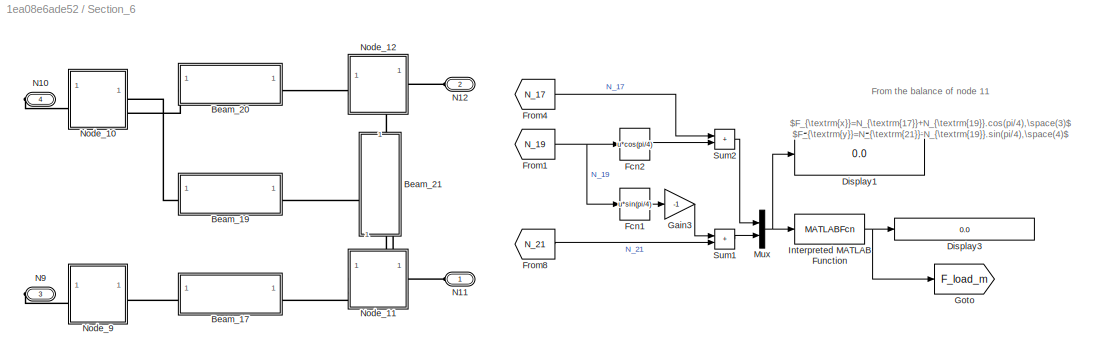
BLOCK [SubSystem] Section_6
  NameLocation = left
BLOCK [SubSystem] Section_6/Beam_17
BLOCK [PMIOPort] Section_6/Beam_17/B
  Side = Left
BLOCK [DotProduct] Section_6/Beam_17/Dot Product
  OutDataTypeStr = Inherit: Inherit via internal rule
BLOCK [PMIOPort] Section_6/Beam_17/F
  Port = 2
  Side = Right
BLOCK [Reference] Section_6/Beam_17/Flexible Cylindrical Beam1  REF=sm_lib/Body Elements/Flexible Bodies/Beams/Flexible Cylindrical Beam
  AttributesFormatString = %<Description>
  SourceBlock = sm_lib/Body Elements/Flexible Bodies/Beams/Flexible Cylindrical Beam
  SourceType = Flexible Cylindrical Beam
BLOCK [From] Section_6/Beam_17/From7
  GotoTag = con
  TagVisibility = global
BLOCK [Goto] Section_6/Beam_17/Goto
  GotoTag = N_17
  TagVisibility = global
BLOCK [MATLABFcn] Section_6/Beam_17/Interpreted MATLAB Function
  AttributesFormatString = %<Description>
  Description = u(3)
  MATLABFcn = u(3)
BLOCK [Reference] Section_6/Beam_17/PS-Simulink Converter6  REF=nesl_utility/PS-Simulink
Converter
  SourceBlock = nesl_utility/PS-Simulink\nConverter
  SourceType = PS-Simulink\nConverter
BLOCK [Reference] Section_6/Beam_17/Rigid Transform1  REF=sm_lib/Frames and
Transforms/Rigid
Transform
  AttributesFormatString = %<RotationStandardAxis>\n%<RotationAngle> deg
  SourceBlock = sm_lib/Frames and\nTransforms/Rigid\nTransform
  SourceType = Rigid\nTransform
BLOCK [Reference] Section_6/Beam_17/Rigid Transform2  REF=sm_lib/Frames and
Transforms/Rigid
Transform
  AttributesFormatString = %<RotationStandardAxis>\n%<RotationAngle> deg
  SourceBlock = sm_lib/Frames and\nTransforms/Rigid\nTransform
  SourceType = Rigid\nTransform
BLOCK [Reference] Section_6/Beam_17/Weld Joint2  REF=sm_lib/Joints/Weld Joint
  AttributesFormatString = %<Description>
  Description = Total force\nsensing
  SourceBlock = sm_lib/Joints/Weld Joint
  SourceType = Weld Joint
BLOCK [SubSystem] Section_6/Beam_19
BLOCK [PMIOPort] Section_6/Beam_19/B
  Side = Left
BLOCK [DotProduct] Section_6/Beam_19/Dot Product
  OutDataTypeStr = Inherit: Inherit via internal rule
BLOCK [PMIOPort] Section_6/Beam_19/F
  Port = 2
  Side = Right
BLOCK [Reference] Section_6/Beam_19/Flexible Cylindrical Beam1  REF=sm_lib/Body Elements/Flexible Bodies/Beams/Flexible Cylindrical Beam
  AttributesFormatString = %<Description>
  SourceBlock = sm_lib/Body Elements/Flexible Bodies/Beams/Flexible Cylindrical Beam
  SourceType = Flexible Cylindrical Beam
BLOCK [From] Section_6/Beam_19/From7
  GotoTag = con
  TagVisibility = global
BLOCK [Goto] Section_6/Beam_19/Goto
  GotoTag = N_19
  TagVisibility = global
BLOCK [MATLABFcn] Section_6/Beam_19/Interpreted MATLAB Function
  AttributesFormatString = %<Description>
  Description = u(3)
  MATLABFcn = u(3)
BLOCK [Reference] Section_6/Beam_19/PS-Simulink Converter6  REF=nesl_utility/PS-Simulink
Converter
  SourceBlock = nesl_utility/PS-Simulink\nConverter
  SourceType = PS-Simulink\nConverter
BLOCK [Reference] Section_6/Beam_19/Rigid Transform1  REF=sm_lib/Frames and
Transforms/Rigid
Transform
  AttributesFormatString = %<RotationStandardAxis>\n%<RotationAngle> deg
  SourceBlock = sm_lib/Frames and\nTransforms/Rigid\nTransform
  SourceType = Rigid\nTransform
BLOCK [Reference] Section_6/Beam_19/Rigid Transform2  REF=sm_lib/Frames and
Transforms/Rigid
Transform
  AttributesFormatString = %<RotationStandardAxis>\n%<RotationAngle> deg
  SourceBlock = sm_lib/Frames and\nTransforms/Rigid\nTransform
  SourceType = Rigid\nTransform
BLOCK [Reference] Section_6/Beam_19/Weld Joint2  REF=sm_lib/Joints/Weld Joint
  AttributesFormatString = %<Description>
  Description = Total force\nsensing
  SourceBlock = sm_lib/Joints/Weld Joint
  SourceType = Weld Joint
BLOCK [SubSystem] Section_6/Beam_20
BLOCK [PMIOPort] Section_6/Beam_20/B
  Side = Left
BLOCK [DotProduct] Section_6/Beam_20/Dot Product
  OutDataTypeStr = Inherit: Inherit via internal rule
BLOCK [PMIOPort] Section_6/Beam_20/F
  Port = 2
  Side = Right
BLOCK [Reference] Section_6/Beam_20/Flexible Cylindrical Beam1  REF=sm_lib/Body Elements/Flexible Bodies/Beams/Flexible Cylindrical Beam
  AttributesFormatString = %<Description>
  SourceBlock = sm_lib/Body Elements/Flexible Bodies/Beams/Flexible Cylindrical Beam
  SourceType = Flexible Cylindrical Beam
BLOCK [From] Section_6/Beam_20/From7
  GotoTag = con
  TagVisibility = global
BLOCK [Goto] Section_6/Beam_20/Goto
  GotoTag = N_20
  TagVisibility = global
BLOCK [MATLABFcn] Section_6/Beam_20/Interpreted MATLAB Function
  AttributesFormatString = %<Description>
  Description = u(3)
  MATLABFcn = u(3)
BLOCK [Reference] Section_6/Beam_20/PS-Simulink Converter6  REF=nesl_utility/PS-Simulink
Converter
  SourceBlock = nesl_utility/PS-Simulink\nConverter
  SourceType = PS-Simulink\nConverter
BLOCK [Reference] Section_6/Beam_20/Rigid Transform1  REF=sm_lib/Frames and
Transforms/Rigid
Transform
  AttributesFormatString = %<RotationStandardAxis>\n%<RotationAngle> deg
  SourceBlock = sm_lib/Frames and\nTransforms/Rigid\nTransform
  SourceType = Rigid\nTransform
BLOCK [Reference] Section_6/Beam_20/Rigid Transform2  REF=sm_lib/Frames and
Transforms/Rigid
Transform
  AttributesFormatString = %<RotationStandardAxis>\n%<RotationAngle> deg
  SourceBlock = sm_lib/Frames and\nTransforms/Rigid\nTransform
  SourceType = Rigid\nTransform
BLOCK [Reference] Section_6/Beam_20/Weld Joint2  REF=sm_lib/Joints/Weld Joint
  AttributesFormatString = %<Description>
  Description = Total force\nsensing
  SourceBlock = sm_lib/Joints/Weld Joint
  SourceType = Weld Joint
BLOCK [SubSystem] Section_6/Beam_21
  NameLocation = right
BLOCK [PMIOPort] Section_6/Beam_21/B
  Side = Left
BLOCK [DotProduct] Section_6/Beam_21/Dot Product
  OutDataTypeStr = Inherit: Inherit via internal rule
BLOCK [PMIOPort] Section_6/Beam_21/F
  Port = 2
  Side = Right
BLOCK [Reference] Section_6/Beam_21/Flexible Cylindrical Beam1  REF=sm_lib/Body Elements/Flexible Bodies/Beams/Flexible Cylindrical Beam
  AttributesFormatString = %<Description>
  SourceBlock = sm_lib/Body Elements/Flexible Bodies/Beams/Flexible Cylindrical Beam
  SourceType = Flexible Cylindrical Beam
BLOCK [From] Section_6/Beam_21/From7
  GotoTag = con
  TagVisibility = global
BLOCK [Goto] Section_6/Beam_21/Goto
  GotoTag = N_21
  TagVisibility = global
BLOCK [MATLABFcn] Section_6/Beam_21/Interpreted MATLAB Function
  AttributesFormatString = %<Description>
  Description = u(3)
  MATLABFcn = u(3)
BLOCK [Reference] Section_6/Beam_21/PS-Simulink Converter6  REF=nesl_utility/PS-Simulink
Converter
  SourceBlock = nesl_utility/PS-Simulink\nConverter
  SourceType = PS-Simulink\nConverter
BLOCK [Reference] Section_6/Beam_21/Rigid Transform1  REF=sm_lib/Frames and
Transforms/Rigid
Transform
  AttributesFormatString = %<RotationStandardAxis>\n%<RotationAngle> deg
  SourceBlock = sm_lib/Frames and\nTransforms/Rigid\nTransform
  SourceType = Rigid\nTransform
BLOCK [Reference] Section_6/Beam_21/Rigid Transform2  REF=sm_lib/Frames and
Transforms/Rigid
Transform
  AttributesFormatString = %<RotationStandardAxis>\n%<RotationAngle> deg
  SourceBlock = sm_lib/Frames and\nTransforms/Rigid\nTransform
  SourceType = Rigid\nTransform
BLOCK [Reference] Section_6/Beam_21/Weld Joint2  REF=sm_lib/Joints/Weld Joint
  AttributesFormatString = %<Description>
  Description = Total force\nsensing
  SourceBlock = sm_lib/Joints/Weld Joint
  SourceType = Weld Joint
BLOCK [Display] Section_6/Display1
  Decimation = 1
  Format = long_e
BLOCK [Display] Section_6/Display3
  Decimation = 1
  Format = long_e
BLOCK [Fcn] Section_6/Fcn1
  AttributesFormatString = %<Expr>
  Description = -u/sqrt(2)
  Expr = u*sin(pi/4)
BLOCK [Fcn] Section_6/Fcn2
  AttributesFormatString = %<Expr>
  Description = -u/sqrt(2)
  Expr = u*cos(pi/4)
BLOCK [From] Section_6/From1
  GotoTag = N_19
  TagVisibility = global
BLOCK [From] Section_6/From4
  GotoTag = N_17
  TagVisibility = global
BLOCK [From] Section_6/From8
  GotoTag = N_21
  TagVisibility = global
BLOCK [Gain] Section_6/Gain3
  Gain = -1
BLOCK [Goto] Section_6/Goto
  GotoTag = F_load_m
  TagVisibility = global
BLOCK [MATLABFcn] Section_6/Interpreted MATLAB Function
  MATLABFcn = norm(u)
BLOCK [Mux] Section_6/Mux
  DisplayOption = bar
  Inputs = 2
BLOCK [PMIOPort] Section_6/N10
  Port = 4
  Side = Right
BLOCK [PMIOPort] Section_6/N11
  Side = Left
BLOCK [PMIOPort] Section_6/N12
  Port = 2
  Side = Left
BLOCK [PMIOPort] Section_6/N9
  Port = 3
  Side = Right
BLOCK [SubSystem] Section_6/Node_10
  NameLocation = top
BLOCK [PMIOPort] Section_6/Node_10/F1
  Side = Left
BLOCK [PMIOPort] Section_6/Node_10/F2
  Port = 2
  Side = Right
BLOCK [PMIOPort] Section_6/Node_10/F3
  Port = 3
  Side = Right
BLOCK [Reference] Section_6/Node_10/Point  REF=sm_lib/Curves and Surfaces/Point
  AttributesFormatString = %<Description>
  Description = Frame\nvisualization
  NameLocation = right
  SourceBlock = sm_lib/Curves and Surfaces/Point
  SourceType = Point
BLOCK [Reference] Section_6/Node_10/Point Cloud1  REF=sm_lib/Curves and Surfaces/Point Cloud
  AttributesFormatString = %<Description>
  Description = Graphic\nsphere
  NameLocation = right
  SourceBlock = sm_lib/Curves and Surfaces/Point Cloud
  SourceType = Point Cloud
BLOCK [Reference] Section_6/Node_10/Revolute Joint1  REF=sm_lib/Joints/Revolute Joint
  SourceBlock = sm_lib/Joints/Revolute Joint
  SourceType = Revolute Joint
BLOCK [Reference] Section_6/Node_10/Revolute Joint5  REF=sm_lib/Joints/Revolute Joint
  AttributesFormatString = %<PositionTargetValue>
  SourceBlock = sm_lib/Joints/Revolute Joint
  SourceType = Revolute Joint
BLOCK [SubSystem] Section_6/Node_11
  NameLocation = left
  PortSchema = {"entries":[{"content":{"sides":[{"content":{"connectorIds":["LConn1","LConn2"]},"type":"ConnectorPlacement.EquallySpacedRectSide","uuid":"8515b1c5-3545-41e3-b118-13ff900d4b29"},{"content":{"connectorIds":["RConn1"],"side":"RIGHT"},"type":"ConnectorPlacement.EquallySpacedRectSide","uuid":"a9ef51d2-c79d-4a36-af02-f81a35fa3e5b"},{"content":{"side":"TOP"},"type":"ConnectorPlacement.EquallySpacedRectS...<+388ch>
BLOCK [PMIOPort] Section_6/Node_11/B
  Side = Left
BLOCK [PMIOPort] Section_6/Node_11/F2
  NameLocation = top
  Port = 2
  Side = Left
BLOCK [PMIOPort] Section_6/Node_11/F3
  NameLocation = top
  Port = 3
  Side = Right
BLOCK [PMIOPort] Section_6/Node_11/F4
  NameLocation = left
  Port = 4
  Side = Right
BLOCK [Reference] Section_6/Node_11/Point  REF=sm_lib/Curves and Surfaces/Point
  AttributesFormatString = %<Description>
  Description = Frame\nvisualization
  NameLocation = right
  SourceBlock = sm_lib/Curves and Surfaces/Point
  SourceType = Point
BLOCK [Reference] Section_6/Node_11/Point Cloud1  REF=sm_lib/Curves and Surfaces/Point Cloud
  AttributesFormatString = %<Description>
  Description = Graphic\nsphere
  NameLocation = right
  SourceBlock = sm_lib/Curves and Surfaces/Point Cloud
  SourceType = Point Cloud
BLOCK [Reference] Section_6/Node_11/Revolute Joint1  REF=sm_lib/Joints/Revolute Joint
  NameLocation = right
  SourceBlock = sm_lib/Joints/Revolute Joint
  SourceType = Revolute Joint
BLOCK [Reference] Section_6/Node_11/Revolute Joint2  REF=sm_lib/Joints/Revolute Joint
  NameLocation = right
  SourceBlock = sm_lib/Joints/Revolute Joint
  SourceType = Revolute Joint
BLOCK [SubSystem] Section_6/Node_12
  NameLocation = top
  PortSchema = {"entries":[{"content":{"sides":[{"content":{"connectorIds":["LConn1"]},"type":"ConnectorPlacement.EquallySpacedRectSide","uuid":"8515b1c5-3545-41e3-b118-13ff900d4b29"},{"content":{"connectorIds":["RConn1"],"side":"RIGHT"},"type":"ConnectorPlacement.EquallySpacedRectSide","uuid":"a9ef51d2-c79d-4a36-af02-f81a35fa3e5b"},{"content":{"connectorIds":["LConn2"],"side":"TOP"},"type":"ConnectorPlacement.E...<+379ch>
BLOCK [PMIOPort] Section_6/Node_12/B
  NameLocation = left
  Port = 2
  Side = Left
BLOCK [PMIOPort] Section_6/Node_12/F1
  Side = Left
BLOCK [PMIOPort] Section_6/Node_12/F2
  Port = 3
  Side = Right
BLOCK [Reference] Section_6/Node_12/Point  REF=sm_lib/Curves and Surfaces/Point
  AttributesFormatString = %<Description>
  Description = Frame\nvisualization
  NameLocation = right
  SourceBlock = sm_lib/Curves and Surfaces/Point
  SourceType = Point
BLOCK [Reference] Section_6/Node_12/Point Cloud1  REF=sm_lib/Curves and Surfaces/Point Cloud
  AttributesFormatString = %<Description>
  Description = Graphic\nsphere
  NameLocation = right
  SourceBlock = sm_lib/Curves and Surfaces/Point Cloud
  SourceType = Point Cloud
BLOCK [Reference] Section_6/Node_12/Revolute Joint3  REF=sm_lib/Joints/Revolute Joint
  AttributesFormatString = %<PositionTargetValue>
  NameLocation = right
  SourceBlock = sm_lib/Joints/Revolute Joint
  SourceType = Revolute Joint
BLOCK [SubSystem] Section_6/Node_9
  NameLocation = top
BLOCK [PMIOPort] Section_6/Node_9/F1
  NameLocation = top
  Side = Left
BLOCK [PMIOPort] Section_6/Node_9/F2
  NameLocation = top
  Port = 2
  Side = Right
BLOCK [Reference] Section_6/Node_9/Point  REF=sm_lib/Curves and Surfaces/Point
  AttributesFormatString = %<Description>
  Description = Frame\nvisualization
  NameLocation = right
  SourceBlock = sm_lib/Curves and Surfaces/Point
  SourceType = Point
BLOCK [Reference] Section_6/Node_9/Point Cloud1  REF=sm_lib/Curves and Surfaces/Point Cloud
  AttributesFormatString = %<Description>
  Description = Graphic\nsphere
  NameLocation = right
  SourceBlock = sm_lib/Curves and Surfaces/Point Cloud
  SourceType = Point Cloud
BLOCK [Reference] Section_6/Node_9/Revolute Joint1  REF=sm_lib/Joints/Revolute Joint
  SourceBlock = sm_lib/Joints/Revolute Joint
  SourceType = Revolute Joint
BLOCK [Sum] Section_6/Sum1
  IconShape = rectangular
  NameLocation = top
BLOCK [Sum] Section_6/Sum2
  IconShape = rectangular
  NameLocation = top
BLOCK [SubSystem] World Frame
  PortSchema = {"entries":[{"content":{"sides":[{"content":{},"type":"ConnectorPlacement.EquallySpacedRectSide","uuid":"6a8e21d3-b0b2-4758-a6c8-a7be5ecb73b9"},{"content":{"side":"RIGHT"},"type":"ConnectorPlacement.EquallySpacedRectSide","uuid":"42798d98-bef9-4838-9935-056c1ef1235d"},{"content":{"connectorIds":["LConn1"],"side":"TOP"},"type":"ConnectorPlacement.EquallySpacedRectSide","uuid":"7c8f84cf-9fc0-4b00-b0...<+202ch>
BLOCK [PMIOPort] World Frame/Conn1
  Side = Left
BLOCK [Reference] World Frame/Mechanism Configuration  REF=sm_lib/Utilities/Mechanism
Configuration
  SourceBlock = sm_lib/Utilities/Mechanism\nConfiguration
  SourceType = Mechanism\nConfiguration
BLOCK [Reference] World Frame/Solver Configuration  REF=nesl_utility/Solver
Configuration
  SourceBlock = nesl_utility/Solver\nConfiguration
  SourceType = Solver\nConfiguration
BLOCK [Reference] World Frame/World Frame  REF=sm_lib/Frames and
Transforms/World Frame
  SourceBlock = sm_lib/Frames and\nTransforms/World Frame
  SourceType = World Frame
ANNOTATION Node_Deflection_10: Node_Deflection_10
ANNOTATION Node_Deflection_11: Node_Deflection_11
ANNOTATION Node_Deflection_12: Node_Deflection_12
ANNOTATION Node_Deflection_3: Node_Deflection_3
ANNOTATION Node_Deflection_4: Node_Deflection_4
ANNOTATION Node_Deflection_5: Node_Deflection_5
ANNOTATION Node_Deflection_6: Node_Deflection_6
ANNOTATION Node_Deflection_7: Node_Deflection_7
ANNOTATION Node_Deflection_8: Node_Deflection_8
ANNOTATION Node_Deflection_9: Node_Deflection_9
ANNOTATION Section_1/Beam_1: Beam_1
ANNOTATION Section_1/Node_1: Node_1
ANNOTATION Section_1/Node_2: Node_2
ANNOTATION Section_2/Beam_2: Beam_2
ANNOTATION Section_2/Beam_3: Beam_3
ANNOTATION Section_2/Beam_4: Beam_4
ANNOTATION Section_2/Beam_5: Beam_4
ANNOTATION Section_2/Node_1: Node_1
ANNOTATION Section_2/Node_2: Node_2
ANNOTATION Section_2/Node_3: Node_3
ANNOTATION Section_2/Node_4: Node_4
ANNOTATION Section_3/Beam_6: Beam_6
ANNOTATION Section_3/Beam_7: Beam_7
ANNOTATION Section_3/Beam_8: Beam_4
ANNOTATION Section_3/Beam_9: Beam_9
ANNOTATION Section_3/Node_3: Node_3
ANNOTATION Section_3/Node_4: Node_4
ANNOTATION Section_3/Node_5: Node_5
ANNOTATION Section_3/Node_6: Node_6
ANNOTATION Section_4/Beam_10: Beam_10
ANNOTATION Section_4/Beam_11: Beam_11
ANNOTATION Section_4/Beam_12: Beam_12
ANNOTATION Section_4/Beam_14: Beam_14
ANNOTATION Section_4/Node_5: Node_5
ANNOTATION Section_4/Node_6: Node_6
ANNOTATION Section_4/Node_7: Node_7
ANNOTATION Section_4/Node_8: Node_8
ANNOTATION Section_5/Beam_13: Beam_13
ANNOTATION Section_5/Beam_15: Beam_15
ANNOTATION Section_5/Beam_16: Beam_16
ANNOTATION Section_5/Beam_18: Beam_18
ANNOTATION Section_5/Node_10: Node_10
ANNOTATION Section_5/Node_6: Node_6
ANNOTATION Section_5/Node_8: Node_8
ANNOTATION Section_5/Node_9: Node_9
ANNOTATION Section_6: From the balance of node 11
ANNOTATION Section_6: $F_{\textrm{x}}=N_{\textrm{17}}+N_{\textrm{19}}.cos(pi/4),\space(3)$ $F_{\textrm{y}}=N_{\textrm{21}}-N_{\textrm{19}}.sin(pi/4),\space(4)$
ANNOTATION Section_6/Beam_17: Beam_17
ANNOTATION Section_6/Beam_19: Beam_19
ANNOTATION Section_6/Beam_20: Beam_20
ANNOTATION Section_6/Beam_21: Beam_21
ANNOTATION Section_6/Node_10: Node_10
ANNOTATION Section_6/Node_11: Node_11
ANNOTATION Section_6/Node_12: Node_12
ANNOTATION Section_6/Node_9: Node_9
ANNOTATION World Frame: World Frame
LINE Constant1:1 -> Manual Switch:1
LINE F_load/Clock:1 -> F_load/To Workspace2:1
NET F_load/Constant:1 -> F_load/Display12:1, F_load/To Workspace3:1, F_load/difference:2
NET F_load/From:1 -> F_load/Display8:1, F_load/To Workspace1:1, F_load/difference:1
NET F_load/con:1 -> F_load/Adjusted_con:1, F_load/Scope:1, F_load/Simulink-PS Converter2:1, F_load/Simulink-PS Converter3:1, F_load/To Workspace:1
LINE From10:1 -> Display14:1
LINE From11:1 -> Display15:1
LINE From12:1 -> Display16:1
LINE From13:1 -> Display17:1
LINE From14:1 -> Display18:1
LINE From15:1 -> Display19:1
LINE From16:1 -> Display20:1
LINE From17:1 -> Mux:7
LINE From18:1 -> Mux:5
LINE From19:1 -> Mux:6
LINE From1:1 -> Display5:1
LINE From20:1 -> Mux:8
LINE From21:1 -> Mux:15
LINE From22:1 -> Mux:13
LINE From23:1 -> Mux:14
LINE From24:1 -> Mux:16
LINE From25:1 -> Mux:11
LINE From26:1 -> Mux:9
LINE From27:1 -> Mux:10
LINE From28:1 -> Mux:12
LINE From29:1 -> Mux:19
LINE From2:1 -> Display10:1
LINE From30:1 -> Mux:17
LINE From31:1 -> Mux:18
LINE From32:1 -> Mux:20
LINE From33:1 -> Mux:21
LINE From3:1 -> Display4:1
LINE From4:1 -> Mux:3
LINE From5:1 -> Mux:1
LINE From6:1 -> Mux:2
LINE From7:1 -> Display7:1
LINE From8:1 -> Display6:1
LINE From9:1 -> Mux:4
LINE Manual Switch:1 -> F_load:1
LINE Mux:1 -> Display1:1
LINE Node_Deflection_10/Constant1:1 -> Node_Deflection_10/Sum1:2
LINE Node_Deflection_10/Constant:1 -> Node_Deflection_10/Sum:2
LINE Node_Deflection_10/Fcn1:1 -> Node_Deflection_10/Sum:1
LINE Node_Deflection_10/Fcn2:1 -> Node_Deflection_10/Sum1:1
LINE Node_Deflection_10/From7:1 -> Node_Deflection_10/Product:2
LINE Node_Deflection_10/Matrix Concatenate:1 -> Node_Deflection_10/Product:1
NET Node_Deflection_10/PS-Simulink Converter1:1 -> Node_Deflection_10/Fcn1:1, Node_Deflection_10/Fcn2:1
LINE Node_Deflection_10/Product:1 -> Node_Deflection_10/Goto:1
LINE Node_Deflection_10/Sum1:1 -> Node_Deflection_10/Matrix Concatenate:2
LINE Node_Deflection_10/Sum:1 -> Node_Deflection_10/Matrix Concatenate:1
LINE Node_Deflection_11/Constant1:1 -> Node_Deflection_11/Sum1:2
LINE Node_Deflection_11/Constant:1 -> Node_Deflection_11/Sum:2
LINE Node_Deflection_11/Fcn1:1 -> Node_Deflection_11/Sum:1
LINE Node_Deflection_11/Fcn2:1 -> Node_Deflection_11/Sum1:1
LINE Node_Deflection_11/From7:1 -> Node_Deflection_11/Product:2
LINE Node_Deflection_11/Matrix Concatenate:1 -> Node_Deflection_11/Product:1
NET Node_Deflection_11/PS-Simulink Converter1:1 -> Node_Deflection_11/Fcn1:1, Node_Deflection_11/Fcn2:1
LINE Node_Deflection_11/Product:1 -> Node_Deflection_11/Goto:1
LINE Node_Deflection_11/Sum1:1 -> Node_Deflection_11/Matrix Concatenate:2
LINE Node_Deflection_11/Sum:1 -> Node_Deflection_11/Matrix Concatenate:1
LINE Node_Deflection_12/Constant1:1 -> Node_Deflection_12/Sum1:2
LINE Node_Deflection_12/Constant:1 -> Node_Deflection_12/Sum:2
LINE Node_Deflection_12/Fcn1:1 -> Node_Deflection_12/Sum:1
LINE Node_Deflection_12/Fcn2:1 -> Node_Deflection_12/Sum1:1
LINE Node_Deflection_12/From7:1 -> Node_Deflection_12/Product:2
LINE Node_Deflection_12/Matrix Concatenate:1 -> Node_Deflection_12/Product:1
NET Node_Deflection_12/PS-Simulink Converter1:1 -> Node_Deflection_12/Fcn1:1, Node_Deflection_12/Fcn2:1
LINE Node_Deflection_12/Product:1 -> Node_Deflection_12/Goto:1
LINE Node_Deflection_12/Sum1:1 -> Node_Deflection_12/Matrix Concatenate:2
LINE Node_Deflection_12/Sum:1 -> Node_Deflection_12/Matrix Concatenate:1
LINE Node_Deflection_3/Constant1:1 -> Node_Deflection_3/Sum1:2
LINE Node_Deflection_3/Constant:1 -> Node_Deflection_3/Sum:2
LINE Node_Deflection_3/Fcn1:1 -> Node_Deflection_3/Sum:1
LINE Node_Deflection_3/Fcn2:1 -> Node_Deflection_3/Sum1:1
LINE Node_Deflection_3/From7:1 -> Node_Deflection_3/Product:2
LINE Node_Deflection_3/Matrix Concatenate:1 -> Node_Deflection_3/Product:1
NET Node_Deflection_3/PS-Simulink Converter1:1 -> Node_Deflection_3/Fcn1:1, Node_Deflection_3/Fcn2:1
LINE Node_Deflection_3/Product:1 -> Node_Deflection_3/Goto:1
LINE Node_Deflection_3/Sum1:1 -> Node_Deflection_3/Matrix Concatenate:2
LINE Node_Deflection_3/Sum:1 -> Node_Deflection_3/Matrix Concatenate:1
LINE Node_Deflection_4/Constant1:1 -> Node_Deflection_4/Sum1:2
LINE Node_Deflection_4/Constant:1 -> Node_Deflection_4/Sum:2
LINE Node_Deflection_4/Fcn1:1 -> Node_Deflection_4/Sum:1
LINE Node_Deflection_4/Fcn2:1 -> Node_Deflection_4/Sum1:1
LINE Node_Deflection_4/From7:1 -> Node_Deflection_4/Product:2
LINE Node_Deflection_4/Matrix Concatenate:1 -> Node_Deflection_4/Product:1
NET Node_Deflection_4/PS-Simulink Converter1:1 -> Node_Deflection_4/Fcn1:1, Node_Deflection_4/Fcn2:1
LINE Node_Deflection_4/Product:1 -> Node_Deflection_4/Goto:1
LINE Node_Deflection_4/Sum1:1 -> Node_Deflection_4/Matrix Concatenate:2
LINE Node_Deflection_4/Sum:1 -> Node_Deflection_4/Matrix Concatenate:1
LINE Node_Deflection_5/Constant1:1 -> Node_Deflection_5/Sum1:2
LINE Node_Deflection_5/Constant:1 -> Node_Deflection_5/Sum:2
LINE Node_Deflection_5/Fcn1:1 -> Node_Deflection_5/Sum:1
LINE Node_Deflection_5/Fcn2:1 -> Node_Deflection_5/Sum1:1
LINE Node_Deflection_5/From7:1 -> Node_Deflection_5/Product:2
LINE Node_Deflection_5/Matrix Concatenate:1 -> Node_Deflection_5/Product:1
NET Node_Deflection_5/PS-Simulink Converter1:1 -> Node_Deflection_5/Fcn1:1, Node_Deflection_5/Fcn2:1
LINE Node_Deflection_5/Product:1 -> Node_Deflection_5/Goto:1
LINE Node_Deflection_5/Sum1:1 -> Node_Deflection_5/Matrix Concatenate:2
LINE Node_Deflection_5/Sum:1 -> Node_Deflection_5/Matrix Concatenate:1
LINE Node_Deflection_6/Constant1:1 -> Node_Deflection_6/Sum1:2
LINE Node_Deflection_6/Constant:1 -> Node_Deflection_6/Sum:2
LINE Node_Deflection_6/Fcn1:1 -> Node_Deflection_6/Sum:1
LINE Node_Deflection_6/Fcn2:1 -> Node_Deflection_6/Sum1:1
LINE Node_Deflection_6/From7:1 -> Node_Deflection_6/Product:2
LINE Node_Deflection_6/Matrix Concatenate:1 -> Node_Deflection_6/Product:1
NET Node_Deflection_6/PS-Simulink Converter1:1 -> Node_Deflection_6/Fcn1:1, Node_Deflection_6/Fcn2:1
LINE Node_Deflection_6/Product:1 -> Node_Deflection_6/Goto:1
LINE Node_Deflection_6/Sum1:1 -> Node_Deflection_6/Matrix Concatenate:2
LINE Node_Deflection_6/Sum:1 -> Node_Deflection_6/Matrix Concatenate:1
LINE Node_Deflection_7/Constant1:1 -> Node_Deflection_7/Sum1:2
LINE Node_Deflection_7/Constant:1 -> Node_Deflection_7/Sum:2
LINE Node_Deflection_7/Fcn1:1 -> Node_Deflection_7/Sum:1
LINE Node_Deflection_7/Fcn2:1 -> Node_Deflection_7/Sum1:1
LINE Node_Deflection_7/From7:1 -> Node_Deflection_7/Product:2
LINE Node_Deflection_7/Matrix Concatenate:1 -> Node_Deflection_7/Product:1
NET Node_Deflection_7/PS-Simulink Converter1:1 -> Node_Deflection_7/Fcn1:1, Node_Deflection_7/Fcn2:1
LINE Node_Deflection_7/Product:1 -> Node_Deflection_7/Goto:1
LINE Node_Deflection_7/Sum1:1 -> Node_Deflection_7/Matrix Concatenate:2
LINE Node_Deflection_7/Sum:1 -> Node_Deflection_7/Matrix Concatenate:1
LINE Node_Deflection_8/Constant1:1 -> Node_Deflection_8/Sum1:2
LINE Node_Deflection_8/Constant:1 -> Node_Deflection_8/Sum:2
LINE Node_Deflection_8/Fcn1:1 -> Node_Deflection_8/Sum:1
LINE Node_Deflection_8/Fcn2:1 -> Node_Deflection_8/Sum1:1
LINE Node_Deflection_8/From7:1 -> Node_Deflection_8/Product:2
LINE Node_Deflection_8/Matrix Concatenate:1 -> Node_Deflection_8/Product:1
NET Node_Deflection_8/PS-Simulink Converter1:1 -> Node_Deflection_8/Fcn1:1, Node_Deflection_8/Fcn2:1
LINE Node_Deflection_8/Product:1 -> Node_Deflection_8/Goto:1
LINE Node_Deflection_8/Sum1:1 -> Node_Deflection_8/Matrix Concatenate:2
LINE Node_Deflection_8/Sum:1 -> Node_Deflection_8/Matrix Concatenate:1
LINE Node_Deflection_9/Constant1:1 -> Node_Deflection_9/Sum1:2
LINE Node_Deflection_9/Constant:1 -> Node_Deflection_9/Sum:2
LINE Node_Deflection_9/Fcn1:1 -> Node_Deflection_9/Sum:1
LINE Node_Deflection_9/Fcn2:1 -> Node_Deflection_9/Sum1:1
LINE Node_Deflection_9/From7:1 -> Node_Deflection_9/Product:2
LINE Node_Deflection_9/Matrix Concatenate:1 -> Node_Deflection_9/Product:1
NET Node_Deflection_9/PS-Simulink Converter1:1 -> Node_Deflection_9/Fcn1:1, Node_Deflection_9/Fcn2:1
LINE Node_Deflection_9/Product:1 -> Node_Deflection_9/Goto:1
LINE Node_Deflection_9/Sum1:1 -> Node_Deflection_9/Matrix Concatenate:2
LINE Node_Deflection_9/Sum:1 -> Node_Deflection_9/Matrix Concatenate:1
LINE Repeating Sequence Stair1:1 -> Manual Switch:2
LINE Section_1/Beam_1/Dot Product:1 -> Section_1/Beam_1/Goto:1
LINE Section_1/Beam_1/From:1 -> Section_1/Beam_1/Dot Product:2
LINE Section_1/Beam_1/Interpreted MATLAB Function:1 -> Section_1/Beam_1/Dot Product:1
LINE Section_1/Beam_1/PS-Simulink Converter6:1 -> Section_1/Beam_1/Interpreted MATLAB Function:1
LINE Section_1/Node_1/From:1 -> Section_1/Node_1/Product:2
LINE Section_1/Node_1/Interpreted MATLAB Function:1 -> Section_1/Node_1/Product:1
LINE Section_1/Node_1/PS-Simulink Converter1:1 -> Section_1/Node_1/Interpreted MATLAB Function:1
LINE Section_1/Node_1/Product:1 -> Section_1/Node_1/Goto:1
LINE Section_1/Node_2/From:1 -> Section_1/Node_2/Product1:2
LINE Section_1/Node_2/Interpreted MATLAB Function1:1 -> Section_1/Node_2/Product1:1
LINE Section_1/Node_2/PS-Simulink Converter2:1 -> Section_1/Node_2/Interpreted MATLAB Function1:1
LINE Section_1/Node_2/Product1:1 -> Section_1/Node_2/Goto1:1
LINE Section_2/Beam_2/Dot Product:1 -> Section_2/Beam_2/Goto:1
LINE Section_2/Beam_2/From7:1 -> Section_2/Beam_2/Dot Product:2
LINE Section_2/Beam_2/Interpreted MATLAB Function:1 -> Section_2/Beam_2/Dot Product:1
LINE Section_2/Beam_2/PS-Simulink Converter6:1 -> Section_2/Beam_2/Interpreted MATLAB Function:1
LINE Section_2/Beam_3/Dot Product:1 -> Section_2/Beam_3/Goto:1
LINE Section_2/Beam_3/From7:1 -> Section_2/Beam_3/Dot Product:2
LINE Section_2/Beam_3/Interpreted MATLAB Function:1 -> Section_2/Beam_3/Dot Product:1
LINE Section_2/Beam_3/PS-Simulink Converter6:1 -> Section_2/Beam_3/Interpreted MATLAB Function:1
LINE Section_2/Beam_4/Dot Product:1 -> Section_2/Beam_4/Goto:1
LINE Section_2/Beam_4/From7:1 -> Section_2/Beam_4/Dot Product:2
LINE Section_2/Beam_4/Interpreted MATLAB Function:1 -> Section_2/Beam_4/Dot Product:1
LINE Section_2/Beam_4/PS-Simulink Converter6:1 -> Section_2/Beam_4/Interpreted MATLAB Function:1
LINE Section_2/Beam_5/Dot Product:1 -> Section_2/Beam_5/Goto:1
LINE Section_2/Beam_5/From7:1 -> Section_2/Beam_5/Dot Product:2
LINE Section_2/Beam_5/Interpreted MATLAB Function:1 -> Section_2/Beam_5/Dot Product:1
LINE Section_2/Beam_5/PS-Simulink Converter6:1 -> Section_2/Beam_5/Interpreted MATLAB Function:1
LINE Section_3/Beam_6/Dot Product:1 -> Section_3/Beam_6/Goto:1
LINE Section_3/Beam_6/From7:1 -> Section_3/Beam_6/Dot Product:2
LINE Section_3/Beam_6/Interpreted MATLAB Function:1 -> Section_3/Beam_6/Dot Product:1
LINE Section_3/Beam_6/PS-Simulink Converter6:1 -> Section_3/Beam_6/Interpreted MATLAB Function:1
LINE Section_3/Beam_7/Dot Product:1 -> Section_3/Beam_7/Goto:1
LINE Section_3/Beam_7/From7:1 -> Section_3/Beam_7/Dot Product:2
LINE Section_3/Beam_7/Interpreted MATLAB Function:1 -> Section_3/Beam_7/Dot Product:1
LINE Section_3/Beam_7/PS-Simulink Converter6:1 -> Section_3/Beam_7/Interpreted MATLAB Function:1
LINE Section_3/Beam_8/Dot Product:1 -> Section_3/Beam_8/Goto:1
LINE Section_3/Beam_8/From7:1 -> Section_3/Beam_8/Dot Product:2
LINE Section_3/Beam_8/Interpreted MATLAB Function:1 -> Section_3/Beam_8/Dot Product:1
LINE Section_3/Beam_8/PS-Simulink Converter6:1 -> Section_3/Beam_8/Interpreted MATLAB Function:1
LINE Section_3/Beam_9/Dot Product:1 -> Section_3/Beam_9/Goto:1
LINE Section_3/Beam_9/From7:1 -> Section_3/Beam_9/Dot Product:2
LINE Section_3/Beam_9/Interpreted MATLAB Function:1 -> Section_3/Beam_9/Dot Product:1
LINE Section_3/Beam_9/PS-Simulink Converter6:1 -> Section_3/Beam_9/Interpreted MATLAB Function:1
LINE Section_4/Beam_10/Dot Product:1 -> Section_4/Beam_10/Goto:1
LINE Section_4/Beam_10/From7:1 -> Section_4/Beam_10/Dot Product:2
LINE Section_4/Beam_10/Interpreted MATLAB Function:1 -> Section_4/Beam_10/Dot Product:1
LINE Section_4/Beam_10/PS-Simulink Converter6:1 -> Section_4/Beam_10/Interpreted MATLAB Function:1
LINE Section_4/Beam_11/Dot Product:1 -> Section_4/Beam_11/Goto:1
LINE Section_4/Beam_11/From7:1 -> Section_4/Beam_11/Dot Product:2
LINE Section_4/Beam_11/Interpreted MATLAB Function:1 -> Section_4/Beam_11/Dot Product:1
LINE Section_4/Beam_11/PS-Simulink Converter6:1 -> Section_4/Beam_11/Interpreted MATLAB Function:1
LINE Section_4/Beam_12/Dot Product:1 -> Section_4/Beam_12/Goto:1
LINE Section_4/Beam_12/From7:1 -> Section_4/Beam_12/Dot Product:2
LINE Section_4/Beam_12/Interpreted MATLAB Function:1 -> Section_4/Beam_12/Dot Product:1
LINE Section_4/Beam_12/PS-Simulink Converter6:1 -> Section_4/Beam_12/Interpreted MATLAB Function:1
LINE Section_4/Beam_14/Dot Product:1 -> Section_4/Beam_14/Goto:1
LINE Section_4/Beam_14/From7:1 -> Section_4/Beam_14/Dot Product:2
LINE Section_4/Beam_14/Interpreted MATLAB Function:1 -> Section_4/Beam_14/Dot Product:1
LINE Section_4/Beam_14/PS-Simulink Converter6:1 -> Section_4/Beam_14/Interpreted MATLAB Function:1
LINE Section_5/Beam_13/Dot Product:1 -> Section_5/Beam_13/Goto:1
LINE Section_5/Beam_13/From7:1 -> Section_5/Beam_13/Dot Product:2
LINE Section_5/Beam_13/Interpreted MATLAB Function:1 -> Section_5/Beam_13/Dot Product:1
LINE Section_5/Beam_13/PS-Simulink Converter6:1 -> Section_5/Beam_13/Interpreted MATLAB Function:1
LINE Section_5/Beam_15/Dot Product:1 -> Section_5/Beam_15/Goto:1
LINE Section_5/Beam_15/From7:1 -> Section_5/Beam_15/Dot Product:2
LINE Section_5/Beam_15/Interpreted MATLAB Function:1 -> Section_5/Beam_15/Dot Product:1
LINE Section_5/Beam_15/PS-Simulink Converter6:1 -> Section_5/Beam_15/Interpreted MATLAB Function:1
LINE Section_5/Beam_16/Dot Product:1 -> Section_5/Beam_16/Goto:1
LINE Section_5/Beam_16/From7:1 -> Section_5/Beam_16/Dot Product:2
LINE Section_5/Beam_16/Interpreted MATLAB Function:1 -> Section_5/Beam_16/Dot Product:1
LINE Section_5/Beam_16/PS-Simulink Converter6:1 -> Section_5/Beam_16/Interpreted MATLAB Function:1
LINE Section_5/Beam_18/Dot Product:1 -> Section_5/Beam_18/Goto:1
LINE Section_5/Beam_18/From7:1 -> Section_5/Beam_18/Dot Product:2
LINE Section_5/Beam_18/Interpreted MATLAB Function:1 -> Section_5/Beam_18/Dot Product:1
LINE Section_5/Beam_18/PS-Simulink Converter6:1 -> Section_5/Beam_18/Interpreted MATLAB Function:1
LINE Section_6/Beam_17/Dot Product:1 -> Section_6/Beam_17/Goto:1
LINE Section_6/Beam_17/From7:1 -> Section_6/Beam_17/Dot Product:2
LINE Section_6/Beam_17/Interpreted MATLAB Function:1 -> Section_6/Beam_17/Dot Product:1
LINE Section_6/Beam_17/PS-Simulink Converter6:1 -> Section_6/Beam_17/Interpreted MATLAB Function:1
LINE Section_6/Beam_19/Dot Product:1 -> Section_6/Beam_19/Goto:1
LINE Section_6/Beam_19/From7:1 -> Section_6/Beam_19/Dot Product:2
LINE Section_6/Beam_19/Interpreted MATLAB Function:1 -> Section_6/Beam_19/Dot Product:1
LINE Section_6/Beam_19/PS-Simulink Converter6:1 -> Section_6/Beam_19/Interpreted MATLAB Function:1
LINE Section_6/Beam_20/Dot Product:1 -> Section_6/Beam_20/Goto:1
LINE Section_6/Beam_20/From7:1 -> Section_6/Beam_20/Dot Product:2
LINE Section_6/Beam_20/Interpreted MATLAB Function:1 -> Section_6/Beam_20/Dot Product:1
LINE Section_6/Beam_20/PS-Simulink Converter6:1 -> Section_6/Beam_20/Interpreted MATLAB Function:1
LINE Section_6/Beam_21/Dot Product:1 -> Section_6/Beam_21/Goto:1
LINE Section_6/Beam_21/From7:1 -> Section_6/Beam_21/Dot Product:2
LINE Section_6/Beam_21/Interpreted MATLAB Function:1 -> Section_6/Beam_21/Dot Product:1
LINE Section_6/Beam_21/PS-Simulink Converter6:1 -> Section_6/Beam_21/Interpreted MATLAB Function:1
LINE Section_6/Fcn1:1 -> Section_6/Gain3:1
LINE Section_6/Fcn2:1 -> Section_6/Sum2:2
NET Section_6/From1:1 -> Section_6/Fcn1:1, Section_6/Fcn2:1
LINE Section_6/From4:1 -> Section_6/Sum2:1
LINE Section_6/From8:1 -> Section_6/Sum1:2
LINE Section_6/Gain3:1 -> Section_6/Sum1:1
NET Section_6/Interpreted MATLAB Function:1 -> Section_6/Display3:1, Section_6/Goto:1
NET Section_6/Mux:1 -> Section_6/Display1:1, Section_6/Interpreted MATLAB Function:1
LINE Section_6/Sum1:1 -> Section_6/Mux:2
LINE Section_6/Sum2:1 -> Section_6/Mux:1
PLINE F_load/External Force and Torque2:LConn1 -- F_load/PS Product2:RConn1
PLINE F_load/External Force and Torque2:LConn2 -- F_load/PS Product3:RConn1
PLINE F_load/External Force and Torque2:RConn1 -- F_load/F:RConn1
PLINE F_load/PS Constant2:RConn1 -- F_load/PS Product3:LConn2
PLINE F_load/PS Constant3:RConn1 -- F_load/PS Product2:LConn2
PLINE F_load/PS Math Function3:LConn1 -- F_load/Simulink-PS Converter3:RConn1
PLINE F_load/PS Math Function3:RConn1 -- F_load/PS Product2:LConn1
PLINE F_load/PS Math Function4:LConn1 -- F_load/Simulink-PS Converter2:RConn1
PLINE F_load/PS Math Function4:RConn1 -- F_load/PS Product3:LConn1
PNET net1: F_load:RConn1 -- Node_Deflection_11:LConn1 -- Section_6:LConn1
PLINE Node_Deflection_10/Node:RConn1 -- Node_Deflection_10/Transform Sensor:RConn1
PLINE Node_Deflection_10/PS-Simulink Converter1:LConn1 -- Node_Deflection_10/Transform Sensor:RConn2
PLINE Node_Deflection_10/Transform Sensor:LConn1 -- Node_Deflection_10/World Frame1:RConn1
PNET net2: Node_Deflection_10:LConn1 -- Section_5:LConn2 -- Section_6:RConn2
PLINE Node_Deflection_11/Node:RConn1 -- Node_Deflection_11/Transform Sensor:RConn1
PLINE Node_Deflection_11/PS-Simulink Converter1:LConn1 -- Node_Deflection_11/Transform Sensor:RConn2
PLINE Node_Deflection_11/Transform Sensor:LConn1 -- Node_Deflection_11/World Frame1:RConn1
PLINE Node_Deflection_12/Node:RConn1 -- Node_Deflection_12/Transform Sensor:RConn1
PLINE Node_Deflection_12/PS-Simulink Converter1:LConn1 -- Node_Deflection_12/Transform Sensor:RConn2
PLINE Node_Deflection_12/Transform Sensor:LConn1 -- Node_Deflection_12/World Frame1:RConn1
PLINE Node_Deflection_12:LConn1 -- Section_6:LConn2
PLINE Node_Deflection_3/Node:RConn1 -- Node_Deflection_3/Transform Sensor:RConn1
PLINE Node_Deflection_3/PS-Simulink Converter1:LConn1 -- Node_Deflection_3/Transform Sensor:RConn2
PLINE Node_Deflection_3/Transform Sensor:LConn1 -- Node_Deflection_3/World Frame1:RConn1
PNET net3: Node_Deflection_3:LConn1 -- Section_2:RConn1 -- Section_3:LConn1
PLINE Node_Deflection_4/Node:RConn1 -- Node_Deflection_4/Transform Sensor:RConn1
PLINE Node_Deflection_4/PS-Simulink Converter1:LConn1 -- Node_Deflection_4/Transform Sensor:RConn2
PLINE Node_Deflection_4/Transform Sensor:LConn1 -- Node_Deflection_4/World Frame1:RConn1
PNET net4: Node_Deflection_4:LConn1 -- Section_2:RConn2 -- Section_3:LConn2
PLINE Node_Deflection_5/Node:RConn1 -- Node_Deflection_5/Transform Sensor:RConn1
PLINE Node_Deflection_5/PS-Simulink Converter1:LConn1 -- Node_Deflection_5/Transform Sensor:RConn2
PLINE Node_Deflection_5/Transform Sensor:LConn1 -- Node_Deflection_5/World Frame1:RConn1
PNET net5: Node_Deflection_5:LConn1 -- Section_3:RConn1 -- Section_4:LConn1
PLINE Node_Deflection_6/Node:RConn1 -- Node_Deflection_6/Transform Sensor:RConn1
PLINE Node_Deflection_6/PS-Simulink Converter1:LConn1 -- Node_Deflection_6/Transform Sensor:RConn2
PLINE Node_Deflection_6/Transform Sensor:LConn1 -- Node_Deflection_6/World Frame1:RConn1
PNET net6: Node_Deflection_6:LConn1 -- Section_3:RConn2 -- Section_4:LConn2 -- Section_5:RConn1
PLINE Node_Deflection_7/Node:RConn1 -- Node_Deflection_7/Transform Sensor:RConn1
PLINE Node_Deflection_7/PS-Simulink Converter1:LConn1 -- Node_Deflection_7/Transform Sensor:RConn2
PLINE Node_Deflection_7/Transform Sensor:LConn1 -- Node_Deflection_7/World Frame1:RConn1
PLINE Node_Deflection_7:LConn1 -- Section_4:RConn1
PLINE Node_Deflection_8/Node:RConn1 -- Node_Deflection_8/Transform Sensor:RConn1
PLINE Node_Deflection_8/PS-Simulink Converter1:LConn1 -- Node_Deflection_8/Transform Sensor:RConn2
PLINE Node_Deflection_8/Transform Sensor:LConn1 -- Node_Deflection_8/World Frame1:RConn1
PNET net7: Node_Deflection_8:LConn1 -- Section_4:RConn2 -- Section_5:RConn2
PLINE Node_Deflection_9/Node:RConn1 -- Node_Deflection_9/Transform Sensor:RConn1
PLINE Node_Deflection_9/PS-Simulink Converter1:LConn1 -- Node_Deflection_9/Transform Sensor:RConn2
PLINE Node_Deflection_9/Transform Sensor:LConn1 -- Node_Deflection_9/World Frame1:RConn1
PNET net8: Node_Deflection_9:LConn1 -- Section_5:LConn1 -- Section_6:RConn1
PLINE Section_1/Beam_1/B:RConn1 -- Section_1/Beam_1/Rigid Transform1:LConn1
PLINE Section_1/Beam_1/Beam:LConn1 -- Section_1/Beam_1/Weld Joint2:RConn1
PLINE Section_1/Beam_1/Beam:RConn1 -- Section_1/Beam_1/Rigid Transform2:LConn1
PLINE Section_1/Beam_1/F:RConn1 -- Section_1/Beam_1/Rigid Transform2:RConn1
PLINE Section_1/Beam_1/PS-Simulink Converter6:LConn1 -- Section_1/Beam_1/Weld Joint2:RConn2
PLINE Section_1/Beam_1/Rigid Transform1:RConn1 -- Section_1/Beam_1/Weld Joint2:LConn1
PNET net9: Section_1/Beam_1:LConn1 -- Section_1/Node_1:RConn1 -- Section_1/Rigid Transform:LConn1
PNET net10: Section_1/Beam_1:RConn1 -- Section_1/N2:RConn1 -- Section_1/Node_2:RConn1
PLINE Section_1/N1:RConn1 -- Section_1/Rigid Transform:RConn1
PNET net11: Section_1/Node_1/B:RConn1 -- Section_1/Node_1/Point:LConn1 -- Section_1/Node_1/Revolute Joint1:LConn1
PNET net12: Section_1/Node_1/F:RConn1 -- Section_1/Node_1/Point Cloud:LConn1 -- Section_1/Node_1/Revolute Joint1:RConn1
PLINE Section_1/Node_1/PS-Simulink Converter1:LConn1 -- Section_1/Node_1/Revolute Joint1:RConn2
PNET net13: Section_1/Node_1:LConn1 -- Section_1/Node_2:LConn1 -- Section_1/W:RConn1
PLINE Section_1/Node_2/B:RConn1 -- Section_1/Node_2/Rigid Transform2:LConn1
PNET net14: Section_1/Node_2/F:RConn1 -- Section_1/Node_2/Pin Slot Joint1:RConn1 -- Section_1/Node_2/Point Cloud1:LConn1
PLINE Section_1/Node_2/PS-Simulink Converter2:LConn1 -- Section_1/Node_2/Pin Slot Joint1:RConn2
PNET net15: Section_1/Node_2/Pin Slot Joint1:LConn1 -- Section_1/Node_2/Point2:LConn1 -- Section_1/Node_2/Rigid Transform2:RConn1
PLINE Section_1:LConn1 -- World Frame:LConn1
PLINE Section_1:RConn1 -- Section_2:LConn1
PLINE Section_1:RConn2 -- Section_2:LConn2
PLINE Section_2/Beam_2/B:RConn1 -- Section_2/Beam_2/Rigid Transform1:LConn1
PLINE Section_2/Beam_2/F:RConn1 -- Section_2/Beam_2/Rigid Transform2:RConn1
PLINE Section_2/Beam_2/Flexible Cylindrical Beam1:LConn1 -- Section_2/Beam_2/Weld Joint2:RConn1
PLINE Section_2/Beam_2/Flexible Cylindrical Beam1:RConn1 -- Section_2/Beam_2/Rigid Transform2:LConn1
PLINE Section_2/Beam_2/PS-Simulink Converter6:LConn1 -- Section_2/Beam_2/Weld Joint2:RConn2
PLINE Section_2/Beam_2/Rigid Transform1:RConn1 -- Section_2/Beam_2/Weld Joint2:LConn1
PLINE Section_2/Beam_2:LConn1 -- Section_2/Node_1:RConn1
PLINE Section_2/Beam_2:RConn1 -- Section_2/Node_3:LConn1
PLINE Section_2/Beam_3/B:RConn1 -- Section_2/Beam_3/Rigid Transform1:LConn1
PLINE Section_2/Beam_3/F:RConn1 -- Section_2/Beam_3/Rigid Transform2:RConn1
PLINE Section_2/Beam_3/Flexible Cylindrical Beam1:LConn1 -- Section_2/Beam_3/Weld Joint2:RConn1
PLINE Section_2/Beam_3/Flexible Cylindrical Beam1:RConn1 -- Section_2/Beam_3/Rigid Transform2:LConn1
PLINE Section_2/Beam_3/PS-Simulink Converter6:LConn1 -- Section_2/Beam_3/Weld Joint2:RConn2
PLINE Section_2/Beam_3/Rigid Transform1:RConn1 -- Section_2/Beam_3/Weld Joint2:LConn1
PLINE Section_2/Beam_3:LConn1 -- Section_2/Node_3:RConn1
PLINE Section_2/Beam_3:RConn1 -- Section_2/Node_2:RConn1
PLINE Section_2/Beam_4/B:RConn1 -- Section_2/Beam_4/Rigid Transform1:LConn1
PLINE Section_2/Beam_4/F:RConn1 -- Section_2/Beam_4/Rigid Transform2:RConn1
PLINE Section_2/Beam_4/Flexible Cylindrical Beam1:LConn1 -- Section_2/Beam_4/Weld Joint2:RConn1
PLINE Section_2/Beam_4/Flexible Cylindrical Beam1:RConn1 -- Section_2/Beam_4/Rigid Transform2:LConn1
PLINE Section_2/Beam_4/PS-Simulink Converter6:LConn1 -- Section_2/Beam_4/Weld Joint2:RConn2
PLINE Section_2/Beam_4/Rigid Transform1:RConn1 -- Section_2/Beam_4/Weld Joint2:LConn1
PLINE Section_2/Beam_4:LConn1 -- Section_2/Node_2:RConn2
PLINE Section_2/Beam_4:RConn1 -- Section_2/Node_4:LConn2
PLINE Section_2/Beam_5/B:RConn1 -- Section_2/Beam_5/Rigid Transform1:LConn1
PLINE Section_2/Beam_5/F:RConn1 -- Section_2/Beam_5/Rigid Transform2:RConn1
PLINE Section_2/Beam_5/Flexible Cylindrical Beam1:LConn1 -- Section_2/Beam_5/Weld Joint2:RConn1
PLINE Section_2/Beam_5/Flexible Cylindrical Beam1:RConn1 -- Section_2/Beam_5/Rigid Transform2:LConn1
PLINE Section_2/Beam_5/PS-Simulink Converter6:LConn1 -- Section_2/Beam_5/Weld Joint2:RConn2
PLINE Section_2/Beam_5/Rigid Transform1:RConn1 -- Section_2/Beam_5/Weld Joint2:LConn1
PLINE Section_2/Beam_5:LConn1 -- Section_2/Node_3:RConn2
PLINE Section_2/Beam_5:RConn1 -- Section_2/Node_4:LConn1
PLINE Section_2/N1:RConn1 -- Section_2/Node_1:LConn1
PLINE Section_2/N2:RConn1 -- Section_2/Node_2:LConn1
PLINE Section_2/N3:RConn1 -- Section_2/Node_3:RConn3
PLINE Section_2/N4:RConn1 -- Section_2/Node_4:RConn1
PLINE Section_2/Node_1/B:RConn1 -- Section_2/Node_1/Revolute Joint1:LConn1
PLINE Section_2/Node_1/F:RConn1 -- Section_2/Node_1/Revolute Joint1:RConn1
PNET net16: Section_2/Node_2/B:RConn1 -- Section_2/Node_2/Revolute Joint1:LConn1 -- Section_2/Node_2/Revolute Joint2:LConn1
PLINE Section_2/Node_2/F1:RConn1 -- Section_2/Node_2/Revolute Joint2:RConn1
PLINE Section_2/Node_2/F2:RConn1 -- Section_2/Node_2/Revolute Joint1:RConn1
PNET net17: Section_2/Node_3/B:RConn1 -- Section_2/Node_3/F3:RConn1 -- Section_2/Node_3/Revolute Joint5:LConn1 -- Section_2/Node_3/Revolute Joint6:LConn1
PNET net18: Section_2/Node_3/F1:RConn1 -- Section_2/Node_3/Point Cloud1:LConn1 -- Section_2/Node_3/Revolute Joint5:RConn1
PNET net19: Section_2/Node_3/F2:RConn1 -- Section_2/Node_3/Point:LConn1 -- Section_2/Node_3/Revolute Joint6:RConn1
PNET net20: Section_2/Node_4/B:RConn1 -- Section_2/Node_4/Point Cloud1:LConn1 -- Section_2/Node_4/Revolute Joint4:LConn1
PNET net21: Section_2/Node_4/F1:RConn1 -- Section_2/Node_4/F2:RConn1 -- Section_2/Node_4/Point:LConn1 -- Section_2/Node_4/Revolute Joint4:RConn1
PLINE Section_3/Beam_6/B:RConn1 -- Section_3/Beam_6/Rigid Transform1:LConn1
PLINE Section_3/Beam_6/F:RConn1 -- Section_3/Beam_6/Rigid Transform2:RConn1
PLINE Section_3/Beam_6/Flexible Cylindrical Beam1:LConn1 -- Section_3/Beam_6/Weld Joint2:RConn1
PLINE Section_3/Beam_6/Flexible Cylindrical Beam1:RConn1 -- Section_3/Beam_6/Rigid Transform2:LConn1
PLINE Section_3/Beam_6/PS-Simulink Converter6:LConn1 -- Section_3/Beam_6/Weld Joint2:RConn2
PLINE Section_3/Beam_6/Rigid Transform1:RConn1 -- Section_3/Beam_6/Weld Joint2:LConn1
PLINE Section_3/Beam_6:LConn1 -- Section_3/Node_3:RConn1
PLINE Section_3/Beam_6:RConn1 -- Section_3/Node_5:LConn1
PLINE Section_3/Beam_7/B:RConn1 -- Section_3/Beam_7/Rigid Transform1:LConn1
PLINE Section_3/Beam_7/F:RConn1 -- Section_3/Beam_7/Rigid Transform2:RConn1
PLINE Section_3/Beam_7/Flexible Cylindrical Beam1:LConn1 -- Section_3/Beam_7/Weld Joint2:RConn1
PLINE Section_3/Beam_7/Flexible Cylindrical Beam1:RConn1 -- Section_3/Beam_7/Rigid Transform2:LConn1
PLINE Section_3/Beam_7/PS-Simulink Converter6:LConn1 -- Section_3/Beam_7/Weld Joint2:RConn2
PLINE Section_3/Beam_7/Rigid Transform1:RConn1 -- Section_3/Beam_7/Weld Joint2:LConn1
PLINE Section_3/Beam_7:LConn1 -- Section_3/Node_5:RConn1
PLINE Section_3/Beam_7:RConn1 -- Section_3/Node_4:RConn1
PLINE Section_3/Beam_8/B:RConn1 -- Section_3/Beam_8/Rigid Transform1:LConn1
PLINE Section_3/Beam_8/F:RConn1 -- Section_3/Beam_8/Rigid Transform2:RConn1
PLINE Section_3/Beam_8/Flexible Cylindrical Beam1:LConn1 -- Section_3/Beam_8/Weld Joint2:RConn1
PLINE Section_3/Beam_8/Flexible Cylindrical Beam1:RConn1 -- Section_3/Beam_8/Rigid Transform2:LConn1
PLINE Section_3/Beam_8/PS-Simulink Converter6:LConn1 -- Section_3/Beam_8/Weld Joint2:RConn2
PLINE Section_3/Beam_8/Rigid Transform1:RConn1 -- Section_3/Beam_8/Weld Joint2:LConn1
PLINE Section_3/Beam_8:LConn1 -- Section_3/Node_4:RConn2
PLINE Section_3/Beam_8:RConn1 -- Section_3/Node_6:LConn2
PLINE Section_3/Beam_9/B:RConn1 -- Section_3/Beam_9/Rigid Transform1:LConn1
PLINE Section_3/Beam_9/F:RConn1 -- Section_3/Beam_9/Rigid Transform2:RConn1
PLINE Section_3/Beam_9/Flexible Cylindrical Beam1:LConn1 -- Section_3/Beam_9/Weld Joint2:RConn1
PLINE Section_3/Beam_9/Flexible Cylindrical Beam1:RConn1 -- Section_3/Beam_9/Rigid Transform2:LConn1
PLINE Section_3/Beam_9/PS-Simulink Converter6:LConn1 -- Section_3/Beam_9/Weld Joint2:RConn2
PLINE Section_3/Beam_9/Rigid Transform1:RConn1 -- Section_3/Beam_9/Weld Joint2:LConn1
PLINE Section_3/Beam_9:LConn1 -- Section_3/Node_5:RConn2
PLINE Section_3/Beam_9:RConn1 -- Section_3/Node_6:LConn1
PLINE Section_3/N3:RConn1 -- Section_3/Node_3:LConn1
PLINE Section_3/N4:RConn1 -- Section_3/Node_4:LConn1
PLINE Section_3/N5:RConn1 -- Section_3/Node_5:RConn3
PLINE Section_3/N6:RConn1 -- Section_3/Node_6:RConn1
PLINE Section_3/Node_3/B:RConn1 -- Section_3/Node_3/Revolute Joint2:LConn1
PLINE Section_3/Node_3/F:RConn1 -- Section_3/Node_3/Revolute Joint2:RConn1
PNET net22: Section_3/Node_4/B:RConn1 -- Section_3/Node_4/Revolute Joint1:LConn1 -- Section_3/Node_4/Revolute Joint2:LConn1
PLINE Section_3/Node_4/F1:RConn1 -- Section_3/Node_4/Revolute Joint2:RConn1
PLINE Section_3/Node_4/F2:RConn1 -- Section_3/Node_4/Revolute Joint1:RConn1
PNET net23: Section_3/Node_5/B:RConn1 -- Section_3/Node_5/F3:RConn1 -- Section_3/Node_5/Revolute Joint2:LConn1 -- Section_3/Node_5/Revolute Joint3:LConn1
PNET net24: Section_3/Node_5/F1:RConn1 -- Section_3/Node_5/Point Cloud1:LConn1 -- Section_3/Node_5/Revolute Joint3:RConn1
PNET net25: Section_3/Node_5/F2:RConn1 -- Section_3/Node_5/Point:LConn1 -- Section_3/Node_5/Revolute Joint2:RConn1
PNET net26: Section_3/Node_6/B:RConn1 -- Section_3/Node_6/Point Cloud1:LConn1 -- Section_3/Node_6/Revolute Joint2:LConn1
PNET net27: Section_3/Node_6/F1:RConn1 -- Section_3/Node_6/F2:RConn1 -- Section_3/Node_6/Point:LConn1 -- Section_3/Node_6/Revolute Joint2:RConn1
PLINE Section_4/Beam_10/B:RConn1 -- Section_4/Beam_10/Rigid Transform1:LConn1
PLINE Section_4/Beam_10/F:RConn1 -- Section_4/Beam_10/Rigid Transform2:RConn1
PLINE Section_4/Beam_10/Flexible Cylindrical Beam1:LConn1 -- Section_4/Beam_10/Weld Joint2:RConn1
PLINE Section_4/Beam_10/Flexible Cylindrical Beam1:RConn1 -- Section_4/Beam_10/Rigid Transform2:LConn1
PLINE Section_4/Beam_10/PS-Simulink Converter6:LConn1 -- Section_4/Beam_10/Weld Joint2:RConn2
PLINE Section_4/Beam_10/Rigid Transform1:RConn1 -- Section_4/Beam_10/Weld Joint2:LConn1
PLINE Section_4/Beam_10:LConn1 -- Section_4/Node_5:RConn1
PLINE Section_4/Beam_10:RConn1 -- Section_4/Node_7:LConn1
PLINE Section_4/Beam_11/B:RConn1 -- Section_4/Beam_11/Rigid Transform1:LConn1
PLINE Section_4/Beam_11/F:RConn1 -- Section_4/Beam_11/Rigid Transform2:RConn1
PLINE Section_4/Beam_11/Flexible Cylindrical Beam1:LConn1 -- Section_4/Beam_11/Weld Joint2:RConn1
PLINE Section_4/Beam_11/Flexible Cylindrical Beam1:RConn1 -- Section_4/Beam_11/Rigid Transform2:LConn1
PLINE Section_4/Beam_11/PS-Simulink Converter6:LConn1 -- Section_4/Beam_11/Weld Joint2:RConn2
PLINE Section_4/Beam_11/Rigid Transform1:RConn1 -- Section_4/Beam_11/Weld Joint2:LConn1
PLINE Section_4/Beam_11:LConn1 -- Section_4/Node_7:RConn1
PLINE Section_4/Beam_11:RConn1 -- Section_4/Node_6:RConn1
PLINE Section_4/Beam_12/B:RConn1 -- Section_4/Beam_12/Rigid Transform1:LConn1
PLINE Section_4/Beam_12/F:RConn1 -- Section_4/Beam_12/Rigid Transform2:RConn1
PLINE Section_4/Beam_12/Flexible Cylindrical Beam1:LConn1 -- Section_4/Beam_12/Weld Joint2:RConn1
PLINE Section_4/Beam_12/Flexible Cylindrical Beam1:RConn1 -- Section_4/Beam_12/Rigid Transform2:LConn1
PLINE Section_4/Beam_12/PS-Simulink Converter6:LConn1 -- Section_4/Beam_12/Weld Joint2:RConn2
PLINE Section_4/Beam_12/Rigid Transform1:RConn1 -- Section_4/Beam_12/Weld Joint2:LConn1
PLINE Section_4/Beam_12:LConn1 -- Section_4/Node_7:RConn2
PLINE Section_4/Beam_12:RConn1 -- Section_4/Node_8:LConn1
PLINE Section_4/Beam_14/B:RConn1 -- Section_4/Beam_14/Rigid Transform1:LConn1
PLINE Section_4/Beam_14/F:RConn1 -- Section_4/Beam_14/Rigid Transform2:RConn1
PLINE Section_4/Beam_14/Flexible Cylindrical Beam1:LConn1 -- Section_4/Beam_14/Weld Joint2:RConn1
PLINE Section_4/Beam_14/Flexible Cylindrical Beam1:RConn1 -- Section_4/Beam_14/Rigid Transform2:LConn1
PLINE Section_4/Beam_14/PS-Simulink Converter6:LConn1 -- Section_4/Beam_14/Weld Joint2:RConn2
PLINE Section_4/Beam_14/Rigid Transform1:RConn1 -- Section_4/Beam_14/Weld Joint2:LConn1
PLINE Section_4/Beam_14:LConn1 -- Section_4/Node_6:RConn2
PLINE Section_4/Beam_14:RConn1 -- Section_4/Node_8:LConn2
PLINE Section_4/N5:RConn1 -- Section_4/Node_5:LConn1
PLINE Section_4/N6:RConn1 -- Section_4/Node_6:LConn1
PLINE Section_4/N7:RConn1 -- Section_4/Node_7:RConn3
PLINE Section_4/N8:RConn1 -- Section_4/Node_8:RConn1
PLINE Section_4/Node_5/B:RConn1 -- Section_4/Node_5/Revolute Joint1:LConn1
PLINE Section_4/Node_5/F:RConn1 -- Section_4/Node_5/Revolute Joint1:RConn1
PNET net28: Section_4/Node_6/B:RConn1 -- Section_4/Node_6/Revolute Joint1:LConn1 -- Section_4/Node_6/Revolute Joint2:LConn1
PLINE Section_4/Node_6/F1:RConn1 -- Section_4/Node_6/Revolute Joint2:RConn1
PLINE Section_4/Node_6/F2:RConn1 -- Section_4/Node_6/Revolute Joint1:RConn1
PNET net29: Section_4/Node_7/B:RConn1 -- Section_4/Node_7/F3:RConn1 -- Section_4/Node_7/Revolute Joint2:LConn1 -- Section_4/Node_7/Revolute Joint3:LConn1
PNET net30: Section_4/Node_7/F1:RConn1 -- Section_4/Node_7/Point Cloud1:LConn1 -- Section_4/Node_7/Revolute Joint3:RConn1
PNET net31: Section_4/Node_7/F2:RConn1 -- Section_4/Node_7/Point:LConn1 -- Section_4/Node_7/Revolute Joint2:RConn1
PNET net32: Section_4/Node_8/B:RConn1 -- Section_4/Node_8/Point Cloud1:LConn1 -- Section_4/Node_8/Revolute Joint2:LConn1
PNET net33: Section_4/Node_8/F1:RConn1 -- Section_4/Node_8/F2:RConn1 -- Section_4/Node_8/Point:LConn1 -- Section_4/Node_8/Revolute Joint2:RConn1
PLINE Section_5/Beam_13/B:RConn1 -- Section_5/Beam_13/Rigid Transform1:LConn1
PLINE Section_5/Beam_13/F:RConn1 -- Section_5/Beam_13/Rigid Transform2:RConn1
PLINE Section_5/Beam_13/Flexible Cylindrical Beam1:LConn1 -- Section_5/Beam_13/Weld Joint2:RConn1
PLINE Section_5/Beam_13/Flexible Cylindrical Beam1:RConn1 -- Section_5/Beam_13/Rigid Transform2:LConn1
PLINE Section_5/Beam_13/PS-Simulink Converter6:LConn1 -- Section_5/Beam_13/Weld Joint2:RConn2
PLINE Section_5/Beam_13/Rigid Transform1:RConn1 -- Section_5/Beam_13/Weld Joint2:LConn1
PLINE Section_5/Beam_13:LConn1 -- Section_5/Node_6:RConn1
PLINE Section_5/Beam_13:RConn1 -- Section_5/Node_9:LConn1
PLINE Section_5/Beam_15/B:RConn1 -- Section_5/Beam_15/Rigid Transform1:LConn1
PLINE Section_5/Beam_15/F:RConn1 -- Section_5/Beam_15/Rigid Transform2:RConn1
PLINE Section_5/Beam_15/Flexible Cylindrical Beam1:LConn1 -- Section_5/Beam_15/Weld Joint2:RConn1
PLINE Section_5/Beam_15/Flexible Cylindrical Beam1:RConn1 -- Section_5/Beam_15/Rigid Transform2:LConn1
PLINE Section_5/Beam_15/PS-Simulink Converter6:LConn1 -- Section_5/Beam_15/Weld Joint2:RConn2
PLINE Section_5/Beam_15/Rigid Transform1:RConn1 -- Section_5/Beam_15/Weld Joint2:LConn1
PLINE Section_5/Beam_15:LConn1 -- Section_5/Node_8:RConn1
PLINE Section_5/Beam_15:RConn1 -- Section_5/Node_9:LConn2
PLINE Section_5/Beam_16/B:RConn1 -- Section_5/Beam_16/Rigid Transform1:LConn1
PLINE Section_5/Beam_16/F:RConn1 -- Section_5/Beam_16/Rigid Transform2:RConn1
PLINE Section_5/Beam_16/Flexible Cylindrical Beam1:LConn1 -- Section_5/Beam_16/Weld Joint2:RConn1
PLINE Section_5/Beam_16/Flexible Cylindrical Beam1:RConn1 -- Section_5/Beam_16/Rigid Transform2:LConn1
PLINE Section_5/Beam_16/PS-Simulink Converter6:LConn1 -- Section_5/Beam_16/Weld Joint2:RConn2
PLINE Section_5/Beam_16/Rigid Transform1:RConn1 -- Section_5/Beam_16/Weld Joint2:LConn1
PLINE Section_5/Beam_16:LConn1 -- Section_5/Node_8:RConn2
PLINE Section_5/Beam_16:RConn1 -- Section_5/Node_10:LConn1
PLINE Section_5/Beam_18/B:RConn1 -- Section_5/Beam_18/Rigid Transform1:LConn1
PLINE Section_5/Beam_18/F:RConn1 -- Section_5/Beam_18/Rigid Transform2:RConn1
PLINE Section_5/Beam_18/Flexible Cylindrical Beam1:LConn1 -- Section_5/Beam_18/Weld Joint2:RConn1
PLINE Section_5/Beam_18/Flexible Cylindrical Beam1:RConn1 -- Section_5/Beam_18/Rigid Transform2:LConn1
PLINE Section_5/Beam_18/PS-Simulink Converter6:LConn1 -- Section_5/Beam_18/Weld Joint2:RConn2
PLINE Section_5/Beam_18/Rigid Transform1:RConn1 -- Section_5/Beam_18/Weld Joint2:LConn1
PLINE Section_5/Beam_18:LConn1 -- Section_5/Node_9:RConn2
PLINE Section_5/Beam_18:RConn1 -- Section_5/Node_10:LConn2
PLINE Section_5/N10:RConn1 -- Section_5/Node_10:RConn1
PLINE Section_5/N6:RConn1 -- Section_5/Node_6:LConn1
PLINE Section_5/N8:RConn1 -- Section_5/Node_8:LConn1
PLINE Section_5/N9:RConn1 -- Section_5/Node_9:RConn1
PNET net34: Section_5/Node_10/B:RConn1 -- Section_5/Node_10/Point Cloud1:LConn1 -- Section_5/Node_10/Revolute Joint3:LConn1
PNET net35: Section_5/Node_10/F1:RConn1 -- Section_5/Node_10/F2:RConn1 -- Section_5/Node_10/Point:LConn1 -- Section_5/Node_10/Revolute Joint3:RConn1
PNET net36: Section_5/Node_6/F1:RConn1 -- Section_5/Node_6/Point Cloud1:LConn1 -- Section_5/Node_6/Point:LConn1 -- Section_5/Node_6/Revolute Joint1:LConn1
PLINE Section_5/Node_6/F2:RConn1 -- Section_5/Node_6/Revolute Joint1:RConn1
PNET net37: Section_5/Node_8/F1:RConn1 -- Section_5/Node_8/Point Cloud1:LConn1 -- Section_5/Node_8/Point:LConn1 -- Section_5/Node_8/Revolute Joint1:LConn1 -- Section_5/Node_8/Revolute Joint5:LConn1
PLINE Section_5/Node_8/F2:RConn1 -- Section_5/Node_8/Revolute Joint5:RConn1
PLINE Section_5/Node_8/F3:RConn1 -- Section_5/Node_8/Revolute Joint1:RConn1
PNET net38: Section_5/Node_9/B:RConn1 -- Section_5/Node_9/F3:RConn1 -- Section_5/Node_9/Point Cloud1:LConn1 -- Section_5/Node_9/Point:LConn1 -- Section_5/Node_9/Revolute Joint1:LConn1
PNET net39: Section_5/Node_9/F2:RConn1 -- Section_5/Node_9/Revolute Joint1:RConn1 -- Section_5/Node_9/Revolute Joint2:LConn1
PLINE Section_5/Node_9/F4:RConn1 -- Section_5/Node_9/Revolute Joint2:RConn1
PLINE Section_6/Beam_17/B:RConn1 -- Section_6/Beam_17/Rigid Transform1:LConn1
PLINE Section_6/Beam_17/F:RConn1 -- Section_6/Beam_17/Rigid Transform2:RConn1
PLINE Section_6/Beam_17/Flexible Cylindrical Beam1:LConn1 -- Section_6/Beam_17/Weld Joint2:RConn1
PLINE Section_6/Beam_17/Flexible Cylindrical Beam1:RConn1 -- Section_6/Beam_17/Rigid Transform2:LConn1
PLINE Section_6/Beam_17/PS-Simulink Converter6:LConn1 -- Section_6/Beam_17/Weld Joint2:RConn2
PLINE Section_6/Beam_17/Rigid Transform1:RConn1 -- Section_6/Beam_17/Weld Joint2:LConn1
PLINE Section_6/Beam_17:LConn1 -- Section_6/Node_9:RConn1
PLINE Section_6/Beam_17:RConn1 -- Section_6/Node_11:LConn1
PLINE Section_6/Beam_19/B:RConn1 -- Section_6/Beam_19/Rigid Transform1:LConn1
PLINE Section_6/Beam_19/F:RConn1 -- Section_6/Beam_19/Rigid Transform2:RConn1
PLINE Section_6/Beam_19/Flexible Cylindrical Beam1:LConn1 -- Section_6/Beam_19/Weld Joint2:RConn1
PLINE Section_6/Beam_19/Flexible Cylindrical Beam1:RConn1 -- Section_6/Beam_19/Rigid Transform2:LConn1
PLINE Section_6/Beam_19/PS-Simulink Converter6:LConn1 -- Section_6/Beam_19/Weld Joint2:RConn2
PLINE Section_6/Beam_19/Rigid Transform1:RConn1 -- Section_6/Beam_19/Weld Joint2:LConn1
PLINE Section_6/Beam_19:LConn1 -- Section_6/Node_10:RConn1
PLINE Section_6/Beam_19:RConn1 -- Section_6/Node_11:LConn2
PLINE Section_6/Beam_20/B:RConn1 -- Section_6/Beam_20/Rigid Transform1:LConn1
PLINE Section_6/Beam_20/F:RConn1 -- Section_6/Beam_20/Rigid Transform2:RConn1
PLINE Section_6/Beam_20/Flexible Cylindrical Beam1:LConn1 -- Section_6/Beam_20/Weld Joint2:RConn1
PLINE Section_6/Beam_20/Flexible Cylindrical Beam1:RConn1 -- Section_6/Beam_20/Rigid Transform2:LConn1
PLINE Section_6/Beam_20/PS-Simulink Converter6:LConn1 -- Section_6/Beam_20/Weld Joint2:RConn2
PLINE Section_6/Beam_20/Rigid Transform1:RConn1 -- Section_6/Beam_20/Weld Joint2:LConn1
PLINE Section_6/Beam_20:LConn1 -- Section_6/Node_10:RConn2
PLINE Section_6/Beam_20:RConn1 -- Section_6/Node_12:LConn1
PLINE Section_6/Beam_21/B:RConn1 -- Section_6/Beam_21/Rigid Transform1:LConn1
PLINE Section_6/Beam_21/F:RConn1 -- Section_6/Beam_21/Rigid Transform2:RConn1
PLINE Section_6/Beam_21/Flexible Cylindrical Beam1:LConn1 -- Section_6/Beam_21/Weld Joint2:RConn1
PLINE Section_6/Beam_21/Flexible Cylindrical Beam1:RConn1 -- Section_6/Beam_21/Rigid Transform2:LConn1
PLINE Section_6/Beam_21/PS-Simulink Converter6:LConn1 -- Section_6/Beam_21/Weld Joint2:RConn2
PLINE Section_6/Beam_21/Rigid Transform1:RConn1 -- Section_6/Beam_21/Weld Joint2:LConn1
PLINE Section_6/Beam_21:LConn1 -- Section_6/Node_11:RConn2
PLINE Section_6/Beam_21:RConn1 -- Section_6/Node_12:LConn2
PLINE Section_6/N10:RConn1 -- Section_6/Node_10:LConn1
PLINE Section_6/N11:RConn1 -- Section_6/Node_11:RConn1
PLINE Section_6/N12:RConn1 -- Section_6/Node_12:RConn1
PLINE Section_6/N9:RConn1 -- Section_6/Node_9:LConn1
PNET net40: Section_6/Node_10/F1:RConn1 -- Section_6/Node_10/Point Cloud1:LConn1 -- Section_6/Node_10/Point:LConn1 -- Section_6/Node_10/Revolute Joint1:LConn1 -- Section_6/Node_10/Revolute Joint5:LConn1
PLINE Section_6/Node_10/F2:RConn1 -- Section_6/Node_10/Revolute Joint5:RConn1
PLINE Section_6/Node_10/F3:RConn1 -- Section_6/Node_10/Revolute Joint1:RConn1
PNET net41: Section_6/Node_11/B:RConn1 -- Section_6/Node_11/F3:RConn1 -- Section_6/Node_11/Point Cloud1:LConn1 -- Section_6/Node_11/Point:LConn1 -- Section_6/Node_11/Revolute Joint1:LConn1
PNET net42: Section_6/Node_11/F2:RConn1 -- Section_6/Node_11/Revolute Joint1:RConn1 -- Section_6/Node_11/Revolute Joint2:LConn1
PLINE Section_6/Node_11/F4:RConn1 -- Section_6/Node_11/Revolute Joint2:RConn1
PNET net43: Section_6/Node_12/B:RConn1 -- Section_6/Node_12/Point Cloud1:LConn1 -- Section_6/Node_12/Revolute Joint3:LConn1
PNET net44: Section_6/Node_12/F1:RConn1 -- Section_6/Node_12/F2:RConn1 -- Section_6/Node_12/Point:LConn1 -- Section_6/Node_12/Revolute Joint3:RConn1
PNET net45: Section_6/Node_9/F1:RConn1 -- Section_6/Node_9/Point Cloud1:LConn1 -- Section_6/Node_9/Point:LConn1 -- Section_6/Node_9/Revolute Joint1:LConn1
PLINE Section_6/Node_9/F2:RConn1 -- Section_6/Node_9/Revolute Joint1:RConn1
PNET net46: World Frame/Conn1:RConn1 -- World Frame/Solver Configuration:RConn1 -- World Frame/World Frame:RConn1
note: NET lines group one-source signal fan-out (src -> all destinations, sorted); 1:1 wires keep LINE; PNET lines group multi-terminal physical nets as a canonical sorted terminal list (undirected conserving connections); 2-terminal nets keep the pairwise PLINE form
